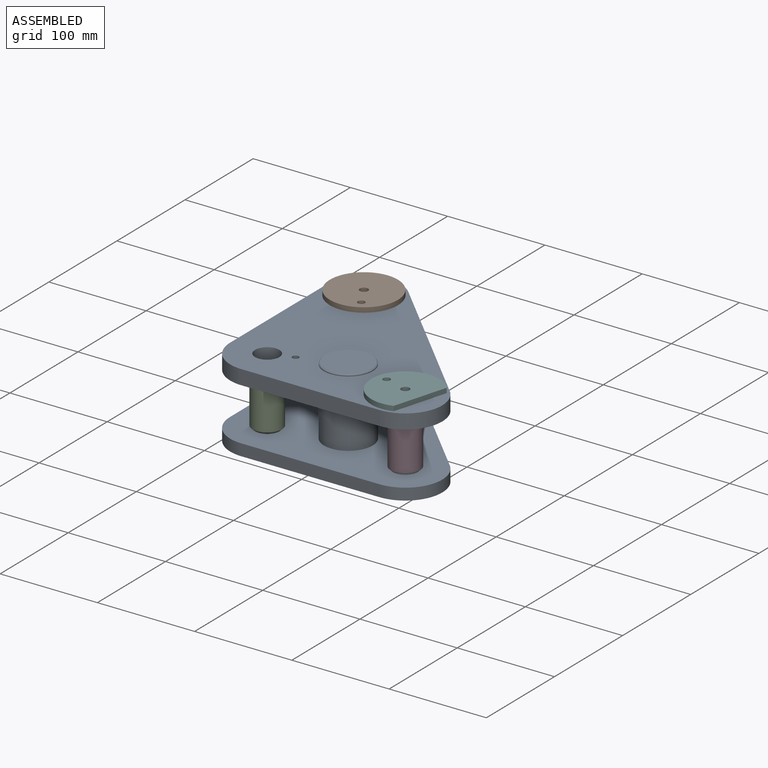
[diagram: assembled view]
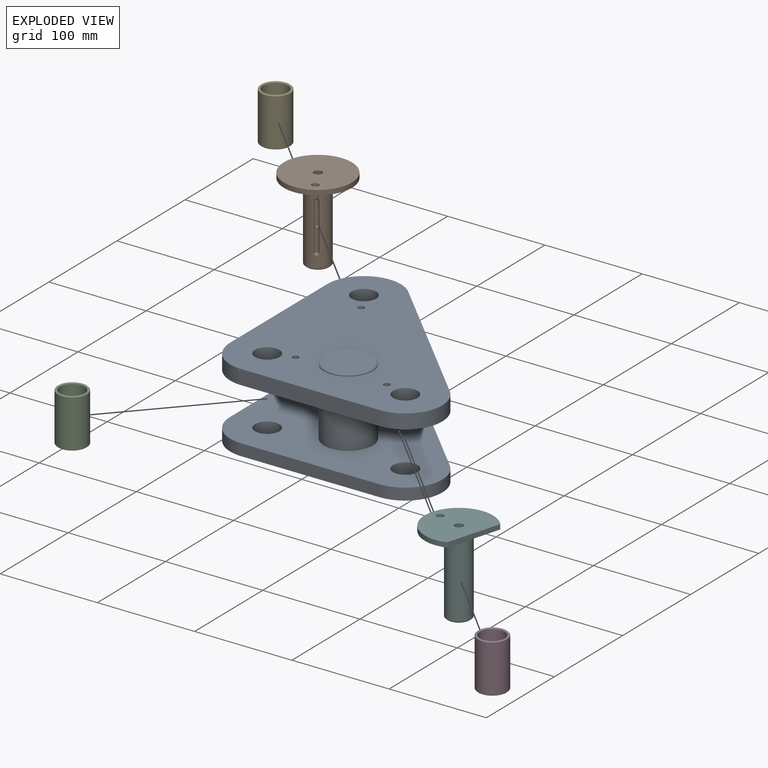
[diagram: exploded view]
GUIDED TOUR — FREECAD ASSEMBLY "hovairGuidage"

This assembly has 6 components, labeled P0..P5 below (a component is one placed body or linked part; the same part can appear more than once), held together by 0 modeled joints plus 7 derived contact edges. A joint is a constraint between two components; its type names the relative motion it leaves free:
  CONTACT — a derived adjacency edge — the two components touch in the source model (clearance under 2% of the assembly's diagonal); it is measured from the geometry, not a modeled constraint.
Axis/direction vectors are unit vectors and 'through' points are millimeter coordinates, both in the assembly's world frame.

MATES
  1. CONTACT "contact_0_1": P0 <-> P1, contact direction (-0.700, 0.714, 0.000) through (27.67, 172.96, 81.00) mm (derived from contact, not a modeled constraint)
  2. CONTACT "contact_0_2": P0 <-> P2, contact direction (-0.714, -0.700, -0.022) through (26.80, 44.10, 13.00) mm (derived from contact, not a modeled constraint)
  3. CONTACT "contact_0_3": P0 <-> P3, contact direction (0.700, -0.714, 0.000) through (188.90, 28.87, 65.00) mm (derived from contact, not a modeled constraint)
  4. CONTACT "contact_0_4": P0 <-> P4, contact direction (-0.700, 0.714, 0.000) through (28.65, 188.67, 65.00) mm (derived from contact, not a modeled constraint)
  5. CONTACT "contact_0_5": P0 <-> P5, contact direction (0.700, -0.714, 0.000) through (155.80, 48.45, 81.00) mm (derived from contact, not a modeled constraint)
  6. CONTACT "contact_1_4": P1 <-> P4, contact direction (-0.700, 0.714, 0.000) through (44.25, 169.17, 14.53) mm (derived from contact, not a modeled constraint)
  7. CONTACT "contact_3_5": P3 <-> P5, contact direction (-1.000, 0.000, 0.000) through (167.88, 41.07, 14.54) mm (derived from contact, not a modeled constraint)

ASSEMBLY ORDER
  1. P0 — the base component [order heuristic]
  2. P5 — core [order heuristic]
  3. P3 — core [order heuristic]
  4. P1 — core [order heuristic]
  5. P4 — core [order heuristic]
  6. P2 [order verified]
Order-tag legend:
  [order verified] — this step's position reverses a verified removal order: the component was checked to insert without passing through the ones already placed.
  [order heuristic] — the first 5 components form the assembly's core: parts whose collision-free extraction could not be verified, listed in mate-graph order.

Of the 6 components, 5 carry a construction recipe — the FreeCAD feature program (sketches with constraints, then the solid features that consume them) that regenerates the part from scratch, quoted from this document or from the linked companion document it references; the rest are supplied as boundary geometry only. The tour below walks the components in assembly order: each is shown spotlighted twice — in the assembled view, then in the exploded view, where a leader line traces a displaced component back to its assembled socket (components that stay in place when exploded have no leader line; saturated green if recipe-attached, orange if geometry-only; every other component desaturated gray) — followed by its recipe or geometry summary and the mates that hold it.
NOTE — this tour is split across 2 documents so each fits a 32k-token context. This is document 1: the component sections continue in the remaining 1 document, each repeating the header above.
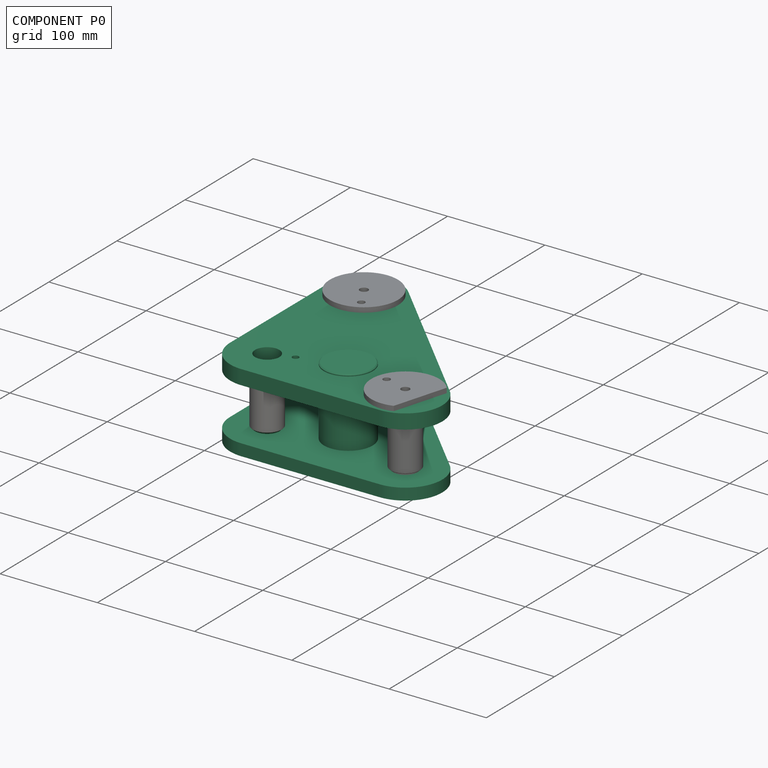
[diagram: component P0 — assembled]
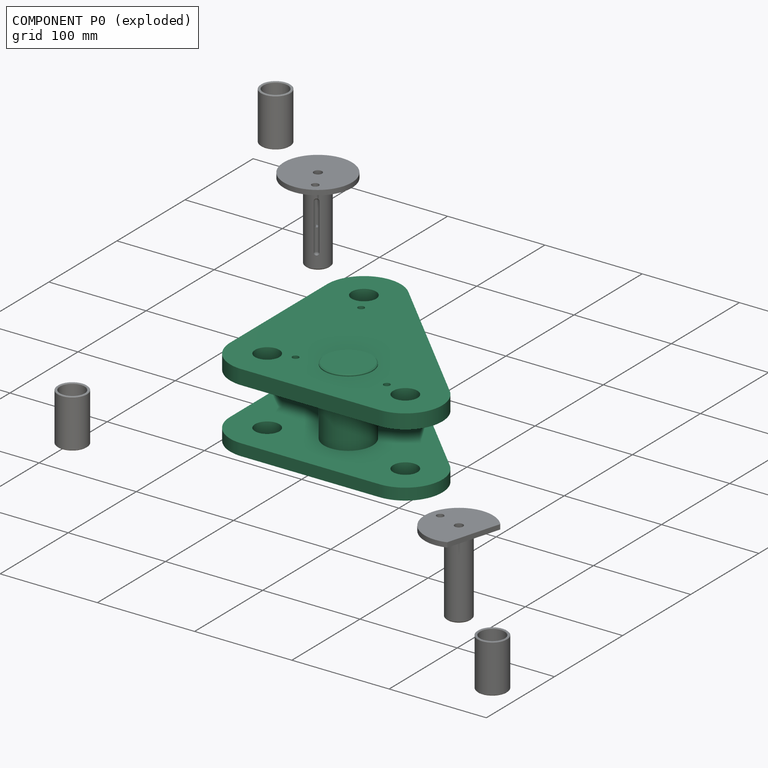
[diagram: component P0 — exploded]
COMPONENT P0 — recipe-attached ("triangle droit", a linked part whose construction recipe lives in a companion FreeCAD document of the same project; that document's serialized recipe follows).
Held by: resting contact with P1 (derived edge); resting contact with P2 (derived edge); resting contact with P3 (derived edge); resting contact with P4 (derived edge); resting contact with P5 (derived edge).
Construction recipe (the companion document, serialized — sketch geometry with constraints, then the solid features built on it; lengths are millimeters unless a unit is written):

FCSTD DOCUMENT  (FreeCAD 0.21R33668 +26 (Git))
Label: hovairGuidageTriangle
License: All rights reserved
LicenseURL: http://en.wikipedia.org/wiki/All_rights_reserved
objects: TechDraw::DrawViewDimension×35, TechDraw::DrawViewAnnotation×11, Sketcher::SketchObject×9, PartDesign::Pad×6, TechDraw::DrawProjGroupItem×5, TechDraw::DrawSVGTemplate×3, TechDraw::DrawProjGroup×3, TechDraw::DrawViewSection×3, TechDraw::DrawPage×3, PartDesign::Plane×2, PartDesign::Hole×2, PartDesign::Chamfer×2, PartDesign::Body×2, TechDraw::DrawViewBalloon×1
note: 91 computed .brp shape members not serialized (recipe doc carries the construction recipe); baked Part::Feature solids carry a one-line shape summary decoded from their .brp

FEATURE [Sketcher::SketchObject] Sketch006
  FullyConstrained = true
  MapMode = 5
  Support = -> [XY_Plane003]
  sketch-geometry (10):
    g0: ArcOfCircle CenterX=38 CenterY=38 CenterZ=0 NormalX=0 NormalY=0 NormalZ=1 AngleXU=0 Radius=38 StartAngle=3.14159 EndAngle=4.71239
    g1: ArcOfCircle CenterX=180 CenterY=38 CenterZ=0 NormalX=0 NormalY=0 NormalZ=1 AngleXU=0 Radius=38 StartAngle=4.71239 EndAngle=7.06858
    g2: LineSegment StartX=38 StartY=0 StartZ=0 EndX=180 EndY=0 EndZ=0
    g3: ArcOfCircle CenterX=38 CenterY=180 CenterZ=0 NormalX=0 NormalY=0 NormalZ=1 AngleXU=0 Radius=38 StartAngle=0.785398 EndAngle=3.14159
    g4: LineSegment StartX=64.8701 StartY=206.87 StartZ=0 EndX=206.87 EndY=64.8701 EndZ=0
    g5: LineSegment StartX=0 StartY=180 StartZ=0 EndX=0 EndY=38 EndZ=0
    g6: Circle CenterX=38 CenterY=180 CenterZ=0 NormalX=0 NormalY=0 NormalZ=1 AngleXU=0 Radius=12.5
    g7: Circle CenterX=180 CenterY=38 CenterZ=0 NormalX=0 NormalY=0 NormalZ=1 AngleXU=0 Radius=12.5
    g8: Circle CenterX=38 CenterY=38 CenterZ=0 NormalX=0 NormalY=0 NormalZ=1 AngleXU=0 Radius=12.5
    g9: Circle CenterX=106 CenterY=60 CenterZ=0 NormalX=0 NormalY=0 NormalZ=1 AngleXU=0 Radius=25
  constraints (26):
    c: Radius(g0) = 38
    c: Tangent(g0,g-2) = 1.5708
    c: Tangent(g0,g-1) = -1.5708
    c: Radius(g1) = 38
    c: Tangent(g1,g-1) = -1.5708
    c: Distance(g0,g1) = 142
    c: Coincident(g2,g1)
    c: Coincident(g2,g0)
    c: Radius(g3) = 38
    c: Tangent(g3,g-2) = 1.5708
    c: Tangent(g1,g4) = 1.5708
    c: Tangent(g3,g4) = 1.5708
    c: Coincident(g5,g0)
    c: Coincident(g5,g3)
    c: Coincident(g4,g3)
    c: Coincident(g4,g1)
    c: Distance(g0,g3) = 142
    c: Coincident(g3,g6)
    c: Diameter(g6) = 25
    c: Coincident(g7,g1)
    c: Diameter(g7) = 25
    c: Coincident(g8,g0)
    c: Diameter(g8) = 25
    c: Diameter(g9) = 50
    c: DistanceY(g0,g9) = 60
    c: DistanceX(g0,g9) = 106
FEATURE [PartDesign::Pad] Pad001  label="base de fixation des axes"
  Direction = (0,0,1)
  Length = 12
  Length2 = 10
  Profile = -> Sketch006
  ReferenceAxis = -> Sketch006 [N_Axis]
  Type = 0
FEATURE [Sketcher::SketchObject] Sketch
  ExternalGeometry = -> [Sketch006]
  FullyConstrained = true
  MapMode = 5
  Placement = pos=(0,0,0) rot=(1,0,0;3.14159rad)
  Support = -> [Pad001]
  sketch-geometry (1):
    g0: Circle CenterX=106 CenterY=-60 CenterZ=0 NormalX=0 NormalY=0 NormalZ=1 AngleXU=0 Radius=25
  constraints (2):
    c: Coincident(g0,g-3)
    c: Equal(g0,g-3)
FEATURE [PartDesign::Pad] Pad  label="Entretoise"
  BaseFeature = -> Pad001
  Direction = (0,0,-1)
  Length = 83
  Length2 = 10
  Profile = -> Sketch
  ReferenceAxis = -> Sketch [N_Axis]
  Reversed = true
  Type = 0
FEATURE [PartDesign::Plane] DatumPlane  label="planBase"
  AttachmentOffset = pos=(0,0,54) rot=(0,0,1;0rad)
  Length = 60
  MapMode = 5
  Placement = pos=(0,0,66) rot=(0,0,1;0rad)
  ResizeMode = 0
  Support = -> [Pad]
  Width = 60
FEATURE [Sketcher::SketchObject] Sketch007
  FullyConstrained = true
  MapMode = 5
  Placement = pos=(0,0,66) rot=(0,0,1;0rad)
  Support = -> [DatumPlane]
  expr: Constraints[0] = Sketch006.Constraints[0]
  expr: Constraints[16] = Sketch006.Constraints[16]
  expr: Constraints[18] = Sketch006.Constraints[18]
  expr: Constraints[20] = Sketch006.Constraints[20]
  expr: Constraints[22] = Sketch006.Constraints[22]
  expr: Constraints[23] = Sketch006.Constraints[23]
  expr: Constraints[24] = Sketch006.Constraints[24]
  expr: Constraints[25] = Sketch006.Constraints[25]
  expr: Constraints[3] = Sketch006.Constraints[3]
  expr: Constraints[5] = Sketch006.Constraints[5]
  expr: Constraints[8] = Sketch006.Constraints[8]
  sketch-geometry (10):
    g0: ArcOfCircle CenterX=38 CenterY=38 CenterZ=0 NormalX=0 NormalY=0 NormalZ=1 AngleXU=0 Radius=38 StartAngle=3.14159 EndAngle=4.71239
    g1: ArcOfCircle CenterX=180 CenterY=38 CenterZ=0 NormalX=0 NormalY=0 NormalZ=1 AngleXU=0 Radius=38 StartAngle=4.71239 EndAngle=7.06858
    g2: LineSegment StartX=38 StartY=0 StartZ=0 EndX=180 EndY=0 EndZ=0
    g3: ArcOfCircle CenterX=38 CenterY=180 CenterZ=0 NormalX=0 NormalY=0 NormalZ=1 AngleXU=0 Radius=38 StartAngle=0.785398 EndAngle=3.14159
    g4: LineSegment StartX=64.8701 StartY=206.87 StartZ=0 EndX=206.87 EndY=64.8701 EndZ=0
    g5: LineSegment StartX=0 StartY=180 StartZ=0 EndX=0 EndY=38 EndZ=0
    g6: Circle CenterX=38 CenterY=180 CenterZ=0 NormalX=0 NormalY=0 NormalZ=1 AngleXU=0 Radius=12.5
    g7: Circle CenterX=180 CenterY=38 CenterZ=0 NormalX=0 NormalY=0 NormalZ=1 AngleXU=0 Radius=12.5
    g8: Circle CenterX=38 CenterY=38 CenterZ=0 NormalX=0 NormalY=0 NormalZ=1 AngleXU=0 Radius=12.5
    g9: Circle CenterX=106 CenterY=60 CenterZ=0 NormalX=0 NormalY=0 NormalZ=1 AngleXU=0 Radius=25
  constraints (26):
    c: Radius(g0) = 38
    c: Tangent(g0,g-2) = 1.5708
    c: Tangent(g0,g-1) = -1.5708
    c: Radius(g1) = 38
    c: Tangent(g1,g-1) = -1.5708
    c: Distance(g0,g1) = 142
    c: Coincident(g2,g1)
    c: Coincident(g2,g0)
    c: Radius(g3) = 38
    c: Tangent(g3,g-2) = 1.5708
    c: Tangent(g1,g4) = 1.5708
    c: Tangent(g3,g4) = 1.5708
    c: Coincident(g5,g0)
    c: Coincident(g5,g3)
    c: Coincident(g4,g3)
    c: Coincident(g4,g1)
    c: Distance(g0,g3) = 142
    c: Coincident(g3,g6)
    c: Diameter(g6) = 25
    c: Coincident(g7,g1)
    c: Diameter(g7) = 25
    c: Coincident(g8,g0)
    c: Diameter(g8) = 25
    c: Diameter(g9) = 50
    c: DistanceY(g0,g9) = 60
    c: DistanceX(g0,g9) = 106
FEATURE [PartDesign::Pad] Pad002
  BaseFeature = -> Pad
  Direction = (0,0,1)
  Length = 15
  Length2 = 10
  Profile = -> Sketch007
  ReferenceAxis = -> Sketch007 [N_Axis]
  Type = 0
FEATURE [Sketcher::SketchObject] Sketch008
  ExternalGeometry = -> [Pad002]
  FullyConstrained = false
  MapMode = 5
  Placement = pos=(0,0,81) rot=(0,0,1;0rad)
  Support = -> [Pad002]
  sketch-geometry (9):
    g0: LineSegment StartX=-92.9805 StartY=411.142 StartZ=0 EndX=245.063 EndY=-185.406 EndZ=0
    g1: LineSegment StartX=243.321 StartY=104.427 StartZ=0 EndX=-106.422 EndY=-8.72462 EndZ=0
    g2: LineSegment StartX=-89.2896 StartY=118.059 StartZ=0 EndX=316.645 EndY=-2.62407 EndZ=0
    g3: GeomPoint X=50.3253 Y=158.249 Z=0
    g4: GeomPoint X=61.7861 Y=45.6955 Z=0
    g5: GeomPoint X=156.037 Y=45.1243 Z=0
    g6: Circle CenterX=50.3253 CenterY=158.249 CenterZ=0 NormalX=0 NormalY=0 NormalZ=1 AngleXU=0 Radius=2.5
    g7: Circle CenterX=156.037 CenterY=45.1243 CenterZ=0 NormalX=0 NormalY=0 NormalZ=1 AngleXU=0 Radius=2.5
    g8: Circle CenterX=61.7861 CenterY=45.6955 CenterZ=0 NormalX=0 NormalY=0 NormalZ=1 AngleXU=0 Radius=2.5
  constraints (18):
    c: PointOnObject(g-3,g0)
    c: PointOnObject(g-6,g0)
    c: PointOnObject(g-6,g1)
    c: PointOnObject(g-4,g1)
    c: PointOnObject(g-5,g2)
    c: PointOnObject(g-6,g2)
    c: PointOnObject(g5,g2)
    c: PointOnObject(g3,g0)
    c: PointOnObject(g4,g1)
    c: Distance(g4,g-4) = 25
    c: Distance(g5,g-5) = 25
    c: Distance(g3,g-3) = 25
    c: Coincident(g6,g3)
    c: Coincident(g7,g5)
    c: Coincident(g8,g4)
    c: Diameter(g8) = 5
    c: Equal(g8,g6)
    c: Equal(g8,g7)
FEATURE [PartDesign::Hole] Hole
  BaseFeature = -> Pad002
  CustomThreadClearance = 0
  Depth = 15
  DepthType = 0
  Diameter = 6.6
  DrillForDepth = false
  DrillPoint = 1
  DrillPointAngle = 118
  HoleCutCountersinkAngle = 90
  HoleCutCustomValues = false
  HoleCutDepth = 0
  HoleCutDiameter = 0
  HoleCutType = 0
  ModelThread = false
  Profile = -> Sketch008
  Tapered = false
  TaperedAngle = 90
  ThreadClass = 0
  ThreadDepth = 15
  ThreadDepthType = 0
  ThreadDirection = 0
  ThreadFit = 0
  ThreadSize = 14
  ThreadType = 1
  Threaded = false
  UseCustomThreadClearance = false
FEATURE [PartDesign::Chamfer] Chamfer
  Angle = 45
  Base = -> Hole [Edge70]
  BaseFeature = -> Hole
  ChamferType = 0
  FlipDirection = false
  Size = 1
  Size2 = 1
  SupportTransform = false
  UseAllEdges = false
FEATURE [Sketcher::SketchObject] Sketch010
  FullyConstrained = true
  MapMode = 5
  Support = -> [XY_Plane004]
  sketch-geometry (10):
    g0: ArcOfCircle CenterX=38 CenterY=38 CenterZ=0 NormalX=0 NormalY=0 NormalZ=1 AngleXU=0 Radius=38 StartAngle=3.14159 EndAngle=4.71239
    g1: ArcOfCircle CenterX=180 CenterY=38 CenterZ=0 NormalX=0 NormalY=0 NormalZ=1 AngleXU=0 Radius=38 StartAngle=4.71239 EndAngle=7.06858
    g2: LineSegment StartX=38 StartY=0 StartZ=0 EndX=180 EndY=0 EndZ=0
    g3: ArcOfCircle CenterX=38 CenterY=180 CenterZ=0 NormalX=0 NormalY=0 NormalZ=1 AngleXU=0 Radius=38 StartAngle=0.785398 EndAngle=3.14159
    g4: LineSegment StartX=64.8701 StartY=206.87 StartZ=0 EndX=206.87 EndY=64.8701 EndZ=0
    g5: LineSegment StartX=0 StartY=180 StartZ=0 EndX=0 EndY=38 EndZ=0
    g6: Circle CenterX=38 CenterY=180 CenterZ=0 NormalX=0 NormalY=0 NormalZ=1 AngleXU=0 Radius=12.5
    g7: Circle CenterX=180 CenterY=38 CenterZ=0 NormalX=0 NormalY=0 NormalZ=1 AngleXU=0 Radius=12.5
    g8: Circle CenterX=38 CenterY=38 CenterZ=0 NormalX=0 NormalY=0 NormalZ=1 AngleXU=0 Radius=12.5
    g9: Circle CenterX=60 CenterY=106 CenterZ=0 NormalX=0 NormalY=0 NormalZ=1 AngleXU=0 Radius=25
  constraints (26):
    c: Radius(g0) = 38
    c: Tangent(g0,g-2) = 1.5708
    c: Tangent(g0,g-1) = -1.5708
    c: Radius(g1) = 38
    c: Tangent(g1,g-1) = -1.5708
    c: Distance(g0,g1) = 142
    c: Coincident(g2,g1)
    c: Coincident(g2,g0)
    c: Radius(g3) = 38
    c: Tangent(g3,g-2) = 1.5708
    c: Tangent(g1,g4) = 1.5708
    c: Tangent(g3,g4) = 1.5708
    c: Coincident(g5,g0)
    c: Coincident(g5,g3)
    c: Coincident(g4,g3)
    c: Coincident(g4,g1)
    c: Distance(g0,g3) = 142
    c: Coincident(g3,g6)
    c: Diameter(g6) = 25
    c: Coincident(g7,g1)
    c: Diameter(g7) = 25
    c: Coincident(g8,g0)
    c: Diameter(g8) = 25
    c: Diameter(g9) = 50
    c: DistanceY(g0,g9) = 106
    c: DistanceX(g0,g9) = 60
FEATURE [PartDesign::Pad] Pad004  label="base de fixation des axes001"
  Direction = (0,0,1)
  Length = 15
  Length2 = 10
  Profile = -> Sketch010
  ReferenceAxis = -> Sketch010 [N_Axis]
  Type = 0
FEATURE [Sketcher::SketchObject] Sketch009
  ExternalGeometry = -> [Sketch010]
  FullyConstrained = true
  MapMode = 5
  Placement = pos=(0,0,0) rot=(1,0,0;3.14159rad)
  Support = -> [Pad004]
  sketch-geometry (1):
    g0: Circle CenterX=60 CenterY=-106 CenterZ=0 NormalX=0 NormalY=0 NormalZ=1 AngleXU=0 Radius=25
  constraints (2):
    c: Coincident(g0,g-3)
    c: Equal(g0,g-3)
FEATURE [PartDesign::Pad] Pad003  label="Entretoise001"
  BaseFeature = -> Pad004
  Direction = (0,0,-1)
  Length = 86
  Length2 = 10
  Profile = -> Sketch009
  ReferenceAxis = -> Sketch009 [N_Axis]
  Reversed = true
  Type = 0
FEATURE [PartDesign::Plane] DatumPlane001  label="planBase001"
  AttachmentOffset = pos=(0,0,54) rot=(0,0,1;0rad)
  Length = 60
  MapMode = 5
  Placement = pos=(0,0,69) rot=(0,0,1;0rad)
  ResizeMode = 0
  Support = -> [Pad003]
  Width = 60
FEATURE [Sketcher::SketchObject] Sketch011
  FullyConstrained = true
  MapMode = 5
  Placement = pos=(0,0,69) rot=(0,0,1;0rad)
  Support = -> [DatumPlane001]
  expr: Constraints[0] = Sketch010.Constraints[0]
  expr: Constraints[16] = Sketch010.Constraints[16]
  expr: Constraints[18] = Sketch010.Constraints[18]
  expr: Constraints[20] = Sketch010.Constraints[20]
  expr: Constraints[22] = Sketch010.Constraints[22]
  expr: Constraints[23] = Sketch010.Constraints[23]
  expr: Constraints[24] = Sketch010.Constraints[24]
  expr: Constraints[25] = Sketch010.Constraints[25]
  expr: Constraints[3] = Sketch010.Constraints[3]
  expr: Constraints[5] = Sketch010.Constraints[5]
  expr: Constraints[8] = Sketch010.Constraints[8]
  sketch-geometry (10):
    g0: ArcOfCircle CenterX=38 CenterY=38 CenterZ=0 NormalX=0 NormalY=0 NormalZ=1 AngleXU=0 Radius=38 StartAngle=3.14159 EndAngle=4.71239
    g1: ArcOfCircle CenterX=180 CenterY=38 CenterZ=0 NormalX=0 NormalY=0 NormalZ=1 AngleXU=0 Radius=38 StartAngle=4.71239 EndAngle=7.06858
    g2: LineSegment StartX=38 StartY=0 StartZ=0 EndX=180 EndY=0 EndZ=0
    g3: ArcOfCircle CenterX=38 CenterY=180 CenterZ=0 NormalX=0 NormalY=0 NormalZ=1 AngleXU=0 Radius=38 StartAngle=0.785398 EndAngle=3.14159
    g4: LineSegment StartX=64.8701 StartY=206.87 StartZ=0 EndX=206.87 EndY=64.8701 EndZ=0
    g5: LineSegment StartX=0 StartY=180 StartZ=0 EndX=0 EndY=38 EndZ=0
    g6: Circle CenterX=38 CenterY=180 CenterZ=0 NormalX=0 NormalY=0 NormalZ=1 AngleXU=0 Radius=12.5
    g7: Circle CenterX=180 CenterY=38 CenterZ=0 NormalX=0 NormalY=0 NormalZ=1 AngleXU=0 Radius=12.5
    g8: Circle CenterX=38 CenterY=38 CenterZ=0 NormalX=0 NormalY=0 NormalZ=1 AngleXU=0 Radius=12.5
    g9: Circle CenterX=60 CenterY=106 CenterZ=0 NormalX=0 NormalY=0 NormalZ=1 AngleXU=0 Radius=25
  constraints (26):
    c: Radius(g0) = 38
    c: Tangent(g0,g-2) = 1.5708
    c: Tangent(g0,g-1) = -1.5708
    c: Radius(g1) = 38
    c: Tangent(g1,g-1) = -1.5708
    c: Distance(g0,g1) = 142
    c: Coincident(g2,g1)
    c: Coincident(g2,g0)
    c: Radius(g3) = 38
    c: Tangent(g3,g-2) = 1.5708
    c: Tangent(g1,g4) = 1.5708
    c: Tangent(g3,g4) = 1.5708
    c: Coincident(g5,g0)
    c: Coincident(g5,g3)
    c: Coincident(g4,g3)
    c: Coincident(g4,g1)
    c: Distance(g0,g3) = 142
    c: Coincident(g3,g6)
    c: Diameter(g6) = 25
    c: Coincident(g7,g1)
    c: Diameter(g7) = 25
    c: Coincident(g8,g0)
    c: Diameter(g8) = 25
    c: Diameter(g9) = 50
    c: DistanceY(g0,g9) = 106
    c: DistanceX(g0,g9) = 60
FEATURE [PartDesign::Pad] Pad005
  BaseFeature = -> Pad003
  Direction = (0,0,1)
  Length = 15
  Length2 = 10
  Profile = -> Sketch011
  ReferenceAxis = -> Sketch011 [N_Axis]
  Type = 0
FEATURE [Sketcher::SketchObject] Sketch012
  ExternalGeometry = -> [Pad005]
  FullyConstrained = false
  MapMode = 5
  Placement = pos=(0,0,84) rot=(0,0,1;0rad)
  Support = -> [Pad005]
  sketch-geometry (9):
    g0: LineSegment StartX=-29.8325 StartY=408.164 StartZ=0 EndX=147.908 EndY=-189.691 EndZ=0
    g1: LineSegment StartX=139.234 StartY=350.905 StartZ=0 EndX=-31.2765 EndY=-176.127 EndZ=0
    g2: LineSegment StartX=-79.9504 StartY=185.305 StartZ=0 EndX=317.641 EndY=-39.9967 EndZ=0
    g3: GeomPoint X=45.1243 Y=156.037 Z=0
    g4: GeomPoint X=45.6955 Y=61.7861 Z=0
    g5: GeomPoint X=158.249 Y=50.3253 Z=0
    g6: Circle CenterX=45.1243 CenterY=156.037 CenterZ=0 NormalX=0 NormalY=0 NormalZ=1 AngleXU=0 Radius=2.5
    g7: Circle CenterX=158.249 CenterY=50.3253 CenterZ=0 NormalX=0 NormalY=0 NormalZ=1 AngleXU=0 Radius=2.5
    g8: Circle CenterX=45.6955 CenterY=61.7861 CenterZ=0 NormalX=0 NormalY=0 NormalZ=1 AngleXU=0 Radius=2.5
  constraints (18):
    c: PointOnObject(g-3,g0)
    c: PointOnObject(g-6,g0)
    c: PointOnObject(g-6,g1)
    c: PointOnObject(g-4,g1)
    c: PointOnObject(g-5,g2)
    c: PointOnObject(g-6,g2)
    c: PointOnObject(g5,g2)
    c: PointOnObject(g3,g0)
    c: PointOnObject(g4,g1)
    c: Distance(g4,g-4) = 25
    c: Distance(g5,g-5) = 25
    c: Distance(g3,g-3) = 25
    c: Coincident(g6,g3)
    c: Coincident(g7,g5)
    c: Coincident(g8,g4)
    c: Diameter(g8) = 5
    c: Equal(g8,g6)
    c: Equal(g8,g7)
FEATURE [PartDesign::Hole] Hole001
  BaseFeature = -> Pad005
  CustomThreadClearance = 0
  Depth = 15
  DepthType = 0
  Diameter = 6.6
  DrillForDepth = false
  DrillPoint = 1
  DrillPointAngle = 118
  HoleCutCountersinkAngle = 90
  HoleCutCustomValues = false
  HoleCutDepth = 0
  HoleCutDiameter = 6.1
  HoleCutType = 0
  ModelThread = false
  Profile = -> Sketch012
  Tapered = false
  TaperedAngle = 90
  ThreadClass = 0
  ThreadDepth = 15
  ThreadDepthType = 0
  ThreadDirection = 0
  ThreadFit = 0
  ThreadSize = 14
  ThreadType = 1
  Threaded = false
  UseCustomThreadClearance = false
FEATURE [PartDesign::Chamfer] Chamfer001
  Angle = 45
  Base = -> Hole001 [Edge70]
  BaseFeature = -> Hole001
  ChamferType = 0
  FlipDirection = false
  Size = 1
  Size2 = 1
  SupportTransform = false
  UseAllEdges = false
FEATURE [PartDesign::Body] Body003  label="triangleGauche"
  Group = -> [Sketch010,Pad004,Sketch009,Pad003,DatumPlane001,Sketch011,Pad005,Sketch012,Hole001,Chamfer001]
  Origin = -> Origin004
  Tip = -> Chamfer001
FEATURE [TechDraw::DrawSVGTemplate] Template
  EditableTexts = Designed_by_Name=Designed by Name; Drawing_number=Drawing number; FC-Date=Date; FC-SC=Scale; FC-SH=Sheet; FC-Title=Title; Subtitle=Subtitle; Weight=Weight
  Height = 210
  Orientation = 1
  Width = 297
  expr: Label = Template
FEATURE [TechDraw::DrawProjGroupItem] ProjItem  label="Front"
  CoarseView = false
  Direction = (0,0,1)
  Focus = 100
  HardHidden = false
  IsoCount = 0
  IsoHidden = false
  IsoVisible = true
  LockPosition = true
  Perspective = false
  Rotation = 0
  RotationVector = (-1,0,0)
  Scale = 0.5
  ScaleType = 2
  ScrubCount = 0
  SeamHidden = false
  SeamVisible = true
  SmoothHidden = false
  SmoothVisible = true
  Source = -> [Chamfer]
  Type = 0
  X = 0
  XDirection = (2e-16,-1,0)
  Y = 0
FEATURE [TechDraw::DrawProjGroupItem] ProjItem001  label="Left"
  CoarseView = false
  Direction = (-2e-16,1,1e-16)
  Focus = 100
  HardHidden = false
  IsoCount = 0
  IsoHidden = false
  IsoVisible = true
  LockPosition = false
  Perspective = false
  Rotation = 0
  RotationVector = (1,0,0)
  ScaleType = 2
  ScrubCount = 0
  SeamHidden = false
  SeamVisible = true
  SmoothHidden = false
  SmoothVisible = true
  Source = -> [Chamfer]
  Type = 1
  X = 90.25
  XDirection = (0,-1e-16,1)
  Y = 0
FEATURE [TechDraw::DrawProjGroup] ProjGroup
  Anchor = -> ProjItem
  AutoDistribute = true
  LockPosition = false
  ProjectionType = 0
  Rotation = 0
  Scale = 0.5
  ScaleType = 0
  Source = -> [Chamfer]
  Views = -> [ProjItem,ProjItem001]
  X = 94.985
  Y = 133.767
  spacingX = 15
  spacingY = 15
FEATURE [TechDraw::DrawViewDimension] Dimension
  AngleOverride = false
  Arbitrary = false
  ArbitraryTolerances = false
  EqualTolerance = true
  ExtensionAngle = 0
  FormatSpec = %.2w
  FormatSpecOverTolerance = %+.2w
  FormatSpecUnderTolerance = %+.2w
  Inverted = false
  LineAngle = 0
  LockPosition = false
  MeasureType = 1
  OverTolerance = 0
  References2D = -> [ProjItem001]
  Rotation = 0
  Scale = 0.5
  ScaleType = 0
  TheoreticalExact = false
  Type = 1
  UnderTolerance = 0
  X = -2.20172
  Y = -62.1546
FEATURE [TechDraw::DrawViewDimension] Dimension003
  AngleOverride = false
  Arbitrary = false
  ArbitraryTolerances = false
  EqualTolerance = true
  ExtensionAngle = 0
  FormatSpec = %.2w
  FormatSpecOverTolerance = %+.2w
  FormatSpecUnderTolerance = %+.2w
  Inverted = false
  LineAngle = 0
  LockPosition = false
  MeasureType = 1
  OverTolerance = 0
  References2D = -> [ProjItem001]
  Rotation = 0
  Scale = 0.5
  ScaleType = 0
  TheoreticalExact = false
  Type = 1
  UnderTolerance = 0
  X = 51.2517
  Y = 24.673
FEATURE [Sketcher::SketchObject] Sketch013
  ExternalGeometry = -> [Chamfer]
  FullyConstrained = false
  MapMode = 5
  Placement = pos=(0,0,81) rot=(0,0,1;0rad)
  Support = -> [Chamfer]
  sketch-geometry (5):
    g0: LineSegment StartX=0 StartY=158.249 StartZ=0 EndX=50.3253 EndY=158.249 EndZ=0
    g1: LineSegment StartX=50.3253 StartY=158.249 StartZ=0 EndX=50.3253 EndY=45.6955 EndZ=0
    g2: LineSegment StartX=50.3253 StartY=45.6955 StartZ=0 EndX=144.123 EndY=45.6955 EndZ=0
    g3: LineSegment StartX=144.123 StartY=45.1243 StartZ=0 EndX=236.221 EndY=45.1243 EndZ=0
    g4: LineSegment StartX=144.123 StartY=45.6955 StartZ=0 EndX=144.123 EndY=45.1243 EndZ=0
  constraints (13):
    c: Coincident(g0,g-3)
    c: Horizontal(g0)
    c: PointOnObject(g0,g-2)
    c: Coincident(g1,g0)
    c: Vertical(g1)
    c: Coincident(g2,g1)
    c: PointOnObject(g-4,g2)
    c: Horizontal(g2)
    c: Horizontal(g3)
    c: PointOnObject(g-5,g3)
    c: Coincident(g4,g3)
    c: Coincident(g2,g4)
    c: Vertical(g4)
FEATURE [PartDesign::Body] Body002  label="triangle droit"
  Group = -> [Sketch006,Pad001,Sketch,Pad,DatumPlane,Sketch007,Pad002,Sketch008,Hole,Chamfer,Sketch013]
  Origin = -> Origin003
  Tip = -> Chamfer
FEATURE [TechDraw::DrawViewDimension] Dimension004
  AngleOverride = false
  Arbitrary = false
  ArbitraryTolerances = false
  EqualTolerance = true
  ExtensionAngle = 0
  FormatSpec = R%.2w
  FormatSpecOverTolerance = %+.2w
  FormatSpecUnderTolerance = %+.2w
  Inverted = false
  LineAngle = 0
  LockPosition = false
  MeasureType = 1
  OverTolerance = 0
  References2D = -> [ProjItem]
  Rotation = 0
  Scale = 0.5
  ScaleType = 0
  TheoreticalExact = false
  Type = 4
  UnderTolerance = 0
  X = 54.0861
  Y = 56.9792
FEATURE [TechDraw::DrawViewDimension] Dimension005
  AngleOverride = false
  Arbitrary = true
  ArbitraryTolerances = false
  EqualTolerance = true
  ExtensionAngle = 0
  FormatSpec = M6
  FormatSpecOverTolerance = %+.2w
  FormatSpecUnderTolerance = %+.2w
  Inverted = false
  LineAngle = 0
  LockPosition = false
  MeasureType = 1
  OverTolerance = 0
  References2D = -> [ProjItem]
  Rotation = 0
  Scale = 0.5
  ScaleType = 0
  TheoreticalExact = false
  Type = 5
  UnderTolerance = 0
  X = 13.1733
  Y = 30.3827
FEATURE [TechDraw::DrawViewDimension] Dimension006
  AngleOverride = false
  Arbitrary = false
  ArbitraryTolerances = false
  EqualTolerance = true
  ExtensionAngle = 0
  FormatSpec = ⌀%.2w
  FormatSpecOverTolerance = %+.2w
  FormatSpecUnderTolerance = %+.2w
  Inverted = false
  LineAngle = 0
  LockPosition = false
  MeasureType = 1
  OverTolerance = 0
  References2D = -> [ProjItem]
  Rotation = 0
  Scale = 0.5
  ScaleType = 0
  TheoreticalExact = false
  Type = 5
  UnderTolerance = 0
  X = 18.3828
  Y = 42.1273
FEATURE [TechDraw::DrawViewDimension] Dimension007
  AngleOverride = false
  Arbitrary = true
  ArbitraryTolerances = false
  EqualTolerance = true
  ExtensionAngle = 0
  FormatSpec = 200
  Inverted = false
  LineAngle = 0
  LockPosition = false
  MeasureType = 1
  OverTolerance = 0
  References2D = -> [ProjItem]
  Rotation = 0
  Scale = 0.5
  ScaleType = 0
  TheoreticalExact = false
  Type = 0
  UnderTolerance = 0
  X = -18.8935
  Y = 32.6274
FEATURE [TechDraw::DrawViewDimension] Dimension008
  AngleOverride = false
  Arbitrary = false
  ArbitraryTolerances = false
  EqualTolerance = true
  ExtensionAngle = 0
  FormatSpec = %.2w
  FormatSpecOverTolerance = %+.2w
  FormatSpecUnderTolerance = %+.2w
  Inverted = false
  LineAngle = 0
  LockPosition = false
  MeasureType = 1
  OverTolerance = 0
  References2D = -> [ProjItem]
  Rotation = 0
  Scale = 0.5
  ScaleType = 0
  TheoreticalExact = false
  Type = 2
  UnderTolerance = 0
  X = 66.2444
  Y = -39.7903
FEATURE [TechDraw::DrawViewDimension] Dimension009
  AngleOverride = false
  Arbitrary = false
  ArbitraryTolerances = false
  EqualTolerance = true
  ExtensionAngle = 0
  FormatSpec = %.2w
  FormatSpecOverTolerance = %+.2w
  FormatSpecUnderTolerance = %+.2w
  Inverted = false
  LineAngle = 0
  LockPosition = false
  MeasureType = 1
  OverTolerance = 0
  References2D = -> [ProjItem]
  Rotation = 0
  Scale = 0.5
  ScaleType = 0
  TheoreticalExact = false
  Type = 2
  UnderTolerance = 0
  X = 66.4544
  Y = -1.17084
FEATURE [TechDraw::DrawViewDimension] Dimension010
  AngleOverride = false
  Arbitrary = false
  ArbitraryTolerances = false
  EqualTolerance = true
  ExtensionAngle = 0
  FormatSpec = %.2w
  FormatSpecOverTolerance = %+.2w
  FormatSpecUnderTolerance = %+.2w
  Inverted = false
  LineAngle = 0
  LockPosition = false
  MeasureType = 1
  OverTolerance = 0
  References2D = -> [ProjItem]
  Rotation = 0
  Scale = 0.5
  ScaleType = 0
  TheoreticalExact = false
  Type = 1
  UnderTolerance = 0
  X = 45.6795
  Y = -66.2972
FEATURE [TechDraw::DrawViewDimension] Dimension011
  AngleOverride = false
  Arbitrary = false
  ArbitraryTolerances = false
  EqualTolerance = true
  ExtensionAngle = 0
  FormatSpec = %.2w
  FormatSpecOverTolerance = %+.2w
  FormatSpecUnderTolerance = %+.2w
  Inverted = false
  LineAngle = 0
  LockPosition = false
  MeasureType = 1
  OverTolerance = 0
  References2D = -> [ProjItem]
  Rotation = 0
  Scale = 0.5
  ScaleType = 0
  TheoreticalExact = false
  Type = 1
  UnderTolerance = 0
  X = 4.75673
  Y = -64.2585
FEATURE [TechDraw::DrawViewDimension] Dimension012
  AngleOverride = false
  Arbitrary = false
  ArbitraryTolerances = false
  EqualTolerance = true
  ExtensionAngle = 0
  FormatSpec = %.2w
  FormatSpecOverTolerance = %+.2w
  FormatSpecUnderTolerance = %+.2w
  Inverted = false
  LineAngle = 0
  LockPosition = false
  MeasureType = 1
  OverTolerance = 0
  References2D = -> [ProjItem]
  Rotation = 0
  Scale = 0.5
  ScaleType = 0
  TheoreticalExact = false
  Type = 1
  UnderTolerance = 0
  X = 39.9798
  Y = 21.4191
FEATURE [TechDraw::DrawViewDimension] Dimension013
  AngleOverride = false
  Arbitrary = false
  ArbitraryTolerances = false
  EqualTolerance = true
  ExtensionAngle = 0
  FormatSpec = ⌀%.2w
  FormatSpecOverTolerance = %+.2w
  FormatSpecUnderTolerance = %+.2w
  Inverted = false
  LineAngle = 0
  LockPosition = false
  MeasureType = 1
  OverTolerance = 0
  References2D = -> [ProjItem]
  Rotation = 0
  Scale = 0.5
  ScaleType = 0
  TheoreticalExact = false
  Type = 5
  UnderTolerance = 0
  X = -8.25965
  Y = 5.44612
FEATURE [TechDraw::DrawViewDimension] Dimension014
  AngleOverride = false
  Arbitrary = false
  ArbitraryTolerances = false
  EqualTolerance = true
  ExtensionAngle = 0
  FormatSpec = %.2w
  FormatSpecOverTolerance = %+.2w
  FormatSpecUnderTolerance = %+.2w
  Inverted = false
  LineAngle = 0
  LockPosition = false
  MeasureType = 1
  OverTolerance = 0
  References2D = -> [ProjItem]
  Rotation = 0
  Scale = 0.5
  ScaleType = 0
  TheoreticalExact = false
  Type = 2
  UnderTolerance = 0
  X = -4.86799
  Y = -24.4104
FEATURE [TechDraw::DrawViewDimension] Dimension015
  AngleOverride = false
  Arbitrary = false
  ArbitraryTolerances = false
  EqualTolerance = true
  ExtensionAngle = 0
  FormatSpec = %.2w
  FormatSpecOverTolerance = %+.2w
  FormatSpecUnderTolerance = %+.2w
  Inverted = false
  LineAngle = 0
  LockPosition = false
  MeasureType = 1
  OverTolerance = 0
  References2D = -> [ProjItem001]
  Rotation = 0
  Scale = 0.5
  ScaleType = 0
  TheoreticalExact = false
  Type = 1
  UnderTolerance = 0
  X = -1.58253
  Y = -51.3349
FEATURE [TechDraw::DrawViewDimension] Dimension016
  AngleOverride = false
  Arbitrary = false
  ArbitraryTolerances = false
  EqualTolerance = true
  ExtensionAngle = 0
  FormatSpec = %.2w
  FormatSpecOverTolerance = %+.2w
  FormatSpecUnderTolerance = %+.2w
  Inverted = false
  LineAngle = 0
  LockPosition = false
  MeasureType = 1
  OverTolerance = 0
  References2D = -> [ProjItem001]
  Rotation = 0
  Scale = 0.5
  ScaleType = 0
  TheoreticalExact = false
  Type = 1
  UnderTolerance = 0
  X = 28.9686
  Y = 65.6457
FEATURE [TechDraw::DrawViewDimension] Dimension017
  AngleOverride = false
  Arbitrary = false
  ArbitraryTolerances = false
  EqualTolerance = true
  ExtensionAngle = 0
  FormatSpec = %.2w
  FormatSpecOverTolerance = %+.2w
  FormatSpecUnderTolerance = %+.2w
  Inverted = false
  LineAngle = 0
  LockPosition = false
  MeasureType = 1
  OverTolerance = 0
  References2D = -> [ProjItem001]
  Rotation = 0
  Scale = 0.5
  ScaleType = 0
  TheoreticalExact = false
  Type = 1
  UnderTolerance = 0
  X = -31.0511
  Y = 64.9807
FEATURE [TechDraw::DrawViewDimension] Dimension018
  AngleOverride = false
  Arbitrary = false
  ArbitraryTolerances = false
  EqualTolerance = true
  ExtensionAngle = 0
  FormatSpec = %.2w x45°
  FormatSpecOverTolerance = %+.2w
  FormatSpecUnderTolerance = %+.2w
  Inverted = false
  LineAngle = 0
  LockPosition = false
  MeasureType = 1
  OverTolerance = 0
  References2D = -> [ProjItem001]
  Rotation = 0
  Scale = 0.5
  ScaleType = 0
  TheoreticalExact = false
  Type = 2
  UnderTolerance = 0
  X = 30.7283
  Y = -23.2941
FEATURE [TechDraw::DrawViewSection] SectionView  label="Section  - "
  BaseView = -> ProjItem
  CoarseView = false
  CutSurfaceDisplay = 2
  Direction = (1,1e-16,0)
  FileGeomPattern = C:/Program Files/FreeCAD 0.21/data/Mod/TechDraw/PAT/FCPAT.pat
  FileHatchPattern = C:/Program Files/FreeCAD 0.21/data/Mod/TechDraw/Patterns/simple.svg
  Focus = 100
  FuseBeforeCut = false
  HardHidden = false
  HatchOffset = (0,0,0)
  HatchRotation = 0
  HatchScale = 1
  IsoCount = 0
  IsoHidden = false
  IsoVisible = true
  LockPosition = false
  NameGeomPattern = Diamant
  Perspective = false
  Rotation = 0
  Scale = 0.5
  ScaleType = 2
  ScrubCount = 0
  SeamHidden = false
  SeamVisible = true
  SectionDirection = 4
  SectionNormal = (1,1e-16,0)
  SectionOrigin = (38,108,41.5)
  SmoothHidden = false
  SmoothVisible = true
  Source = -> [Chamfer]
  TrimAfterCut = false
  X = 79.928
  XDirection = (1e-16,-1,0)
  Y = 37.3303
FEATURE [TechDraw::DrawPage] Page
  KeepUpdated = true
  NextBalloonIndex = 1
  ProjectionType = 0
  Scale = 0.5
  Template = -> Template
  Views = -> [ProjGroup,Dimension,Dimension003,Dimension004,Dimension005,Dimension006,Dimension007,Dimension008,Dimension009,Dimension010,Dimension011,Dimension012,Dimension013,Dimension014,Dimension015,Dimension016,Dimension017,Dimension018,SectionView]
FEATURE [TechDraw::DrawSVGTemplate] Template001
  EditableTexts = A3=A3; A__=_________; B__=_________; C__=_________; D__=_________; E__=_________; Echelle=0,5; F__=_________; G__=_________; H__=_________; I__=_________; Societe=CAF; Sous_titre=DROIT; Titre=TRIANGLE HOVAIR
  Height = 297
  Orientation = 1
  Template = C:/Program Files/FreeCAD 0.21/data/Mod/TechDraw/Templates/A3_Landscape_FR_m52.svg
  Width = 420
FEATURE [TechDraw::DrawProjGroupItem] ProjItem002  label="Front001"
  CoarseView = false
  Direction = (0,0,1)
  Focus = 100
  HardHidden = false
  IsoCount = 0
  IsoHidden = false
  IsoVisible = true
  LockPosition = true
  Perspective = false
  Rotation = 0
  RotationVector = (1,0,0)
  Scale = 0.5
  ScaleType = 2
  ScrubCount = 0
  SeamHidden = false
  SeamVisible = true
  SmoothHidden = false
  SmoothVisible = true
  Source = -> [Body002]
  Type = 0
  X = 0
  XDirection = (1e-16,-1,0)
  Y = 0
FEATURE [TechDraw::DrawProjGroupItem] ProjItem003  label="Left001"
  CoarseView = false
  Direction = (-1e-16,1,1e-16)
  Focus = 100
  HardHidden = false
  IsoCount = 0
  IsoHidden = false
  IsoVisible = true
  LockPosition = true
  Perspective = false
  Rotation = 0
  RotationVector = (1,0,0)
  Scale = 0.5
  ScaleType = 2
  ScrubCount = 0
  SeamHidden = false
  SeamVisible = true
  SmoothHidden = false
  SmoothVisible = false
  Source = -> [Body002]
  Type = 1
  X = 159.01
  XDirection = (0,-1e-16,1)
  Y = 0
FEATURE [TechDraw::DrawProjGroup] ProjGroup001
  Anchor = -> ProjItem002
  AutoDistribute = true
  LockPosition = true
  ProjectionType = 0
  Rotation = 0
  Scale = 0.5
  ScaleType = 0
  Source = -> [Body002]
  Views = -> [ProjItem002,ProjItem003]
  X = 145.162
  Y = 186.721
  spacingX = 15
  spacingY = 15
FEATURE [TechDraw::DrawViewDimension] Dimension019
  AngleOverride = false
  Arbitrary = false
  ArbitraryTolerances = false
  EqualTolerance = true
  ExtensionAngle = 0
  FormatSpec = R%.2w
  FormatSpecOverTolerance = %+.2w
  FormatSpecUnderTolerance = %+.2w
  Inverted = false
  LineAngle = 0
  LockPosition = false
  MeasureType = 1
  OverTolerance = 0
  References2D = -> [ProjItem002]
  Rotation = 0
  Scale = 0.5
  ScaleType = 0
  TheoreticalExact = false
  Type = 4
  UnderTolerance = 0
  X = 54.9066
  Y = 61.5716
FEATURE [TechDraw::DrawViewDimension] Dimension020
  AngleOverride = false
  Arbitrary = false
  ArbitraryTolerances = false
  EqualTolerance = true
  ExtensionAngle = 0
  FormatSpec = %.2w
  FormatSpecOverTolerance = %+.2w
  FormatSpecUnderTolerance = %+.2w
  Inverted = false
  LineAngle = 0
  LockPosition = false
  MeasureType = 1
  OverTolerance = 0
  References2D = -> [ProjItem002]
  Rotation = 0
  Scale = 0.5
  ScaleType = 0
  TheoreticalExact = false
  Type = 2
  UnderTolerance = 0
  X = 71.9765
  Y = -41.5848
FEATURE [TechDraw::DrawViewDimension] Dimension021
  AngleOverride = false
  Arbitrary = false
  ArbitraryTolerances = false
  EqualTolerance = true
  ExtensionAngle = 0
  FormatSpec = %.2w
  FormatSpecOverTolerance = %+.2w
  FormatSpecUnderTolerance = %+.2w
  Inverted = false
  LineAngle = 0
  LockPosition = false
  MeasureType = 1
  OverTolerance = 0
  References2D = -> [ProjItem002]
  Rotation = 0
  Scale = 0.5
  ScaleType = 0
  TheoreticalExact = false
  Type = 2
  UnderTolerance = 0
  X = 72.0538
  Y = 2.10538
FEATURE [TechDraw::DrawViewDimension] Dimension022
  AngleOverride = false
  Arbitrary = false
  ArbitraryTolerances = false
  EqualTolerance = true
  ExtensionAngle = 0
  FormatSpec = ⌀%.2w
  FormatSpecOverTolerance = %+.2w
  FormatSpecUnderTolerance = %+.2w
  Inverted = false
  LineAngle = 0
  LockPosition = false
  MeasureType = 1
  OverTolerance = 0
  References2D = -> [ProjItem002]
  Rotation = 0
  Scale = 0.5
  ScaleType = 0
  TheoreticalExact = false
  Type = 5
  UnderTolerance = 0
  X = 18.893
  Y = 41.1341
FEATURE [TechDraw::DrawViewDimension] Dimension023
  AngleOverride = false
  Arbitrary = true
  ArbitraryTolerances = false
  EqualTolerance = true
  ExtensionAngle = 0
  FormatSpec = M6
  FormatSpecOverTolerance = %+.2w
  FormatSpecUnderTolerance = %+.2w
  Inverted = false
  LineAngle = 0
  LockPosition = false
  MeasureType = 1
  OverTolerance = 0
  References2D = -> [ProjItem002]
  Rotation = 0
  Scale = 0.5
  ScaleType = 0
  TheoreticalExact = false
  Type = 5
  UnderTolerance = 0
  X = 11.001
  Y = 29.1765
FEATURE [TechDraw::DrawViewDimension] Dimension024
  AngleOverride = false
  Arbitrary = false
  ArbitraryTolerances = false
  EqualTolerance = true
  ExtensionAngle = 0
  FormatSpec = %.2w
  FormatSpecOverTolerance = %+.2w
  FormatSpecUnderTolerance = %+.2w
  Inverted = false
  LineAngle = 0
  LockPosition = false
  MeasureType = 1
  OverTolerance = 0
  References2D = -> [ProjItem002]
  Rotation = 0
  Scale = 0.5
  ScaleType = 0
  TheoreticalExact = false
  Type = 1
  UnderTolerance = 0
  X = 45.6162
  Y = -63.3965
FEATURE [TechDraw::DrawViewDimension] Dimension025
  AngleOverride = false
  Arbitrary = false
  ArbitraryTolerances = false
  EqualTolerance = true
  ExtensionAngle = 0
  FormatSpec = %.2w
  FormatSpecOverTolerance = %+.2w
  FormatSpecUnderTolerance = %+.2w
  Inverted = false
  LineAngle = 0
  LockPosition = false
  MeasureType = 1
  OverTolerance = 0
  References2D = -> [ProjItem002]
  Rotation = 0
  Scale = 0.5
  ScaleType = 0
  TheoreticalExact = false
  Type = 1
  UnderTolerance = 0
  X = 5.08227
  Y = -63.2407
FEATURE [TechDraw::DrawViewDimension] Dimension026
  AngleOverride = false
  Arbitrary = false
  ArbitraryTolerances = false
  EqualTolerance = true
  ExtensionAngle = 0
  FormatSpec = %.2w
  FormatSpecOverTolerance = %+.2w
  FormatSpecUnderTolerance = %+.2w
  Inverted = false
  LineAngle = 0
  LockPosition = false
  MeasureType = 1
  OverTolerance = 0
  References2D = -> [ProjItem002]
  Rotation = 0
  Scale = 0.5
  ScaleType = 0
  TheoreticalExact = false
  Type = 1
  UnderTolerance = 0
  X = 39.166
  Y = 19.237
FEATURE [TechDraw::DrawViewDimension] Dimension027
  AngleOverride = false
  Arbitrary = false
  ArbitraryTolerances = false
  EqualTolerance = true
  ExtensionAngle = 0
  FormatSpec = ⌀%.2w
  FormatSpecOverTolerance = %+.2w
  FormatSpecUnderTolerance = %+.2w
  Inverted = false
  LineAngle = 0
  LockPosition = false
  MeasureType = 1
  OverTolerance = 0
  References2D = -> [ProjItem002]
  Rotation = 0
  Scale = 0.5
  ScaleType = 0
  TheoreticalExact = false
  Type = 5
  UnderTolerance = 0
  X = -8.21447
  Y = 4.0267
FEATURE [TechDraw::DrawViewDimension] Dimension028
  AngleOverride = false
  Arbitrary = false
  ArbitraryTolerances = false
  EqualTolerance = true
  ExtensionAngle = 0
  FormatSpec = %.2w
  FormatSpecOverTolerance = %+.2w
  FormatSpecUnderTolerance = %+.2w
  Inverted = false
  LineAngle = 0
  LockPosition = false
  MeasureType = 1
  OverTolerance = 0
  References2D = -> [ProjItem002]
  Rotation = 0
  Scale = 0.5
  ScaleType = 0
  TheoreticalExact = false
  Type = 2
  UnderTolerance = 0
  X = -0.479657
  Y = -24.8425
FEATURE [TechDraw::DrawViewSection] SectionView001  label="A - A"
  BaseView = -> ProjItem002
  CoarseView = false
  CutSurfaceDisplay = 2
  Direction = (1,0,0)
  FileGeomPattern = C:/Program Files/FreeCAD 0.21/data/Mod/TechDraw/PAT/FCPAT.pat
  FileHatchPattern = C:/Program Files/FreeCAD 0.21/data/Mod/TechDraw/Patterns/simple.svg
  Focus = 100
  FuseBeforeCut = false
  HardHidden = false
  HatchOffset = (0,0,0)
  HatchRotation = 0
  HatchScale = 1
  IsoCount = 0
  IsoHidden = false
  IsoVisible = true
  LockPosition = false
  NameGeomPattern = Diamant
  Perspective = false
  Rotation = 0
  Scale = 0.5
  ScaleType = 2
  ScrubCount = 0
  SeamHidden = false
  SeamVisible = true
  SectionDirection = 4
  SectionNormal = (1,0,0)
  SectionOrigin = (38,109,41.5)
  SmoothHidden = false
  SmoothVisible = true
  Source = -> [Body002]
  TrimAfterCut = false
  X = 146.365
  XDirection = (0,-1,0)
  Y = 48.7904
FEATURE [TechDraw::DrawViewSection] SectionView002  label="B-B"
  BaseView = -> ProjItem002
  CoarseView = false
  CutSurfaceDisplay = 2
  Direction = (1e-16,-1,0)
  FileGeomPattern = C:/Program Files/FreeCAD 0.21/data/Mod/TechDraw/PAT/FCPAT.pat
  FileHatchPattern = C:/Program Files/FreeCAD 0.21/data/Mod/TechDraw/Patterns/simple.svg
  Focus = 100
  FuseBeforeCut = false
  HardHidden = false
  HatchOffset = (0,0,0)
  HatchRotation = 0
  HatchScale = 1
  IsoCount = 0
  IsoHidden = false
  IsoVisible = true
  LockPosition = false
  NameGeomPattern = Diamant
  Perspective = false
  Rotation = 90
  Scale = 0.5
  ScaleType = 2
  ScrubCount = 0
  SeamHidden = false
  SeamVisible = true
  SectionDirection = 4
  SectionNormal = (1e-16,-1,0)
  SectionOrigin = (107,158,41.5)
  SmoothHidden = false
  SmoothVisible = true
  Source = -> [Body002]
  TrimAfterCut = false
  X = 46.1608
  XDirection = (1,1e-16,0)
  Y = 159.91
FEATURE [TechDraw::DrawViewAnnotation] Annotation
  Font = osifont
  LineSpace = 100
  LockPosition = false
  MaxWidth = -1
  Rotation = 0
  Scale = 0.5
  ScaleType = 0
  Text = A
  TextSize = 5
  TextStyle = 0
  X = 83.2039
  Y = 173.077
FEATURE [TechDraw::DrawViewAnnotation] Annotation001
  Font = osifont
  LineSpace = 100
  LockPosition = false
  MaxWidth = -1
  Rotation = 0
  Scale = 0.5
  ScaleType = 0
  Text = A
  TextSize = 5
  TextStyle = 0
  X = 208.088
  Y = 174.631
FEATURE [TechDraw::DrawViewDimension] Dimension029
  AngleOverride = false
  Arbitrary = true
  ArbitraryTolerances = false
  EqualTolerance = true
  ExtensionAngle = 0
  FormatSpec = 200
  FormatSpecOverTolerance = %+.2w
  FormatSpecUnderTolerance = %+.2w
  Inverted = false
  LineAngle = 0
  LockPosition = false
  MeasureType = 1
  OverTolerance = 0
  References2D = -> [ProjItem002]
  Rotation = 0
  Scale = 0.5
  ScaleType = 0
  TheoreticalExact = false
  Type = 0
  UnderTolerance = 0
  X = -31.4154
  Y = 29.5425
FEATURE [TechDraw::DrawViewDimension] Dimension030
  AngleOverride = false
  Arbitrary = false
  ArbitraryTolerances = false
  EqualTolerance = true
  ExtensionAngle = 0
  FormatSpec = %.2w
  FormatSpecOverTolerance = %+.2w
  FormatSpecUnderTolerance = %+.2w
  Inverted = false
  LineAngle = 0
  LockPosition = false
  MeasureType = 1
  OverTolerance = 0
  References2D = -> [ProjItem002]
  Rotation = 0
  Scale = 0.5
  ScaleType = 0
  TheoreticalExact = false
  Type = 0
  UnderTolerance = 0
  X = 46.1772
  Y = -21.4952
FEATURE [TechDraw::DrawViewDimension] Dimension031
  AngleOverride = false
  Arbitrary = false
  ArbitraryTolerances = false
  EqualTolerance = true
  ExtensionAngle = 0
  FormatSpec = %.2w
  FormatSpecOverTolerance = %+.2w
  FormatSpecUnderTolerance = %+.2w
  Inverted = false
  LineAngle = 0
  LockPosition = false
  MeasureType = 1
  OverTolerance = 0
  References2D = -> [ProjItem003]
  Rotation = 0
  Scale = 0.5
  ScaleType = 0
  TheoreticalExact = false
  Type = 1
  UnderTolerance = 0
  X = -0.796508
  Y = -67.4652
FEATURE [TechDraw::DrawViewDimension] Dimension032
  AngleOverride = false
  Arbitrary = false
  ArbitraryTolerances = false
  EqualTolerance = true
  ExtensionAngle = 0
  FormatSpec = %.2w
  FormatSpecOverTolerance = %+.2w
  FormatSpecUnderTolerance = %+.2w
  Inverted = false
  LineAngle = 0
  LockPosition = false
  MeasureType = 1
  OverTolerance = 0
  References2D = -> [ProjItem003]
  Rotation = 0
  Scale = 0.5
  ScaleType = 0
  TheoreticalExact = false
  Type = 1
  UnderTolerance = 0
  X = -1.40698
  Y = -81.07
FEATURE [TechDraw::DrawViewDimension] Dimension033
  AngleOverride = false
  Arbitrary = false
  ArbitraryTolerances = false
  EqualTolerance = true
  ExtensionAngle = 0
  FormatSpec = %.2w
  FormatSpecOverTolerance = %+.2w
  FormatSpecUnderTolerance = %+.2w
  Inverted = false
  LineAngle = 0
  LockPosition = false
  MeasureType = 1
  OverTolerance = 0
  References2D = -> [ProjItem003]
  Rotation = 0
  Scale = 0.5
  ScaleType = 0
  TheoreticalExact = false
  Type = 1
  UnderTolerance = 0
  X = -5.05223
  Y = 66.0233
FEATURE [TechDraw::DrawViewDimension] Dimension034
  AngleOverride = false
  Arbitrary = false
  ArbitraryTolerances = false
  EqualTolerance = true
  ExtensionAngle = 0
  FormatSpec = %.2w
  FormatSpecOverTolerance = %+.2w
  FormatSpecUnderTolerance = %+.2w
  Inverted = false
  LineAngle = 0
  LockPosition = false
  MeasureType = 1
  OverTolerance = 0
  References2D = -> [ProjItem003]
  Rotation = 0
  Scale = 0.5
  ScaleType = 0
  TheoreticalExact = false
  Type = 1
  UnderTolerance = 0
  X = 31.8722
  Y = 65.5698
FEATURE [TechDraw::DrawViewAnnotation] Annotation002
  Font = osifont
  LineSpace = 100
  LockPosition = false
  MaxWidth = -1
  Rotation = 0
  Scale = 0.5
  ScaleType = 0
  Text = B
  TextSize = 5
  TextStyle = 0
  X = 136.903
  Y = 254.449
FEATURE [TechDraw::DrawViewAnnotation] Annotation003
  Font = osifont
  LineSpace = 100
  LockPosition = false
  MaxWidth = -1
  Rotation = 0
  Scale = 0.5
  ScaleType = 0
  Text = B
  TextSize = 5
  TextStyle = 0
  X = 135.809
  Y = 129.906
FEATURE [TechDraw::DrawViewAnnotation] Annotation004
  Font = osifont
  LineSpace = 100
  LockPosition = false
  MaxWidth = -1
  Rotation = 0
  Scale = 0.5
  ScaleType = 0
  Text = VUE DE GAUCHE
  TextSize = 5
  TextStyle = 0
  X = 303.694
  Y = 276.661
FEATURE [TechDraw::DrawViewAnnotation] Annotation005
  Font = osifont
  LineSpace = 100
  LockPosition = false
  MaxWidth = -1
  Rotation = 0
  Scale = 0.5
  ScaleType = 0
  Text = VUE DE FACE
  TextSize = 5
  TextStyle = 0
  X = 150.774
  Y = 277.147
FEATURE [TechDraw::DrawViewAnnotation] Annotation006
  Font = osifont
  LineSpace = 100
  LockPosition = false
  MaxWidth = -1
  Rotation = 0
  Scale = 0.5
  ScaleType = 0
  Text = B - B
  TextSize = 5
  TextStyle = 0
  X = 44.1231
  Y = 203.143
FEATURE [TechDraw::DrawViewAnnotation] Annotation007
  Font = osifont
  LineSpace = 100
  LockPosition = false
  MaxWidth = -1
  Rotation = 0
  Scale = 0.5
  ScaleType = 0
  Text = A - A
  TextSize = 5
  TextStyle = 0
  X = 142.457
  Y = 83.3906
FEATURE [TechDraw::DrawSVGTemplate] Template002
  Height = 297
  Orientation = 1
  Template = C:/Program Files/FreeCAD 0.21/data/Mod/TechDraw/Templates/A3_Landscape_FR_m52.svg
  Width = 420
FEATURE [TechDraw::DrawProjGroupItem] ProjItem004  label="Front002"
  CoarseView = false
  Direction = (0,0,1)
  Focus = 100
  HardHidden = false
  IsoCount = 0
  IsoHidden = false
  IsoVisible = true
  LockPosition = true
  Perspective = false
  Rotation = 0
  RotationVector = (1,0,0)
  ScaleType = 2
  ScrubCount = 0
  SeamHidden = false
  SeamVisible = true
  SmoothHidden = false
  SmoothVisible = true
  Source = -> [Body003]
  Type = 0
  X = 0
  XDirection = (1e-16,-1,0)
  Y = 0
FEATURE [TechDraw::DrawProjGroup] ProjGroup002
  Anchor = -> ProjItem004
  AutoDistribute = true
  LockPosition = false
  ProjectionType = 0
  Rotation = 0
  Scale = 0.5
  ScaleType = 0
  Source = -> [Body003]
  Views = -> [ProjItem004]
  X = 130.8
  Y = 175.257
  spacingX = 15
  spacingY = 15
FEATURE [TechDraw::DrawViewDimension] Dimension035
  AngleOverride = false
  Arbitrary = false
  ArbitraryTolerances = false
  EqualTolerance = true
  ExtensionAngle = 0
  FormatSpec = %.2w
  FormatSpecOverTolerance = %+.2w
  FormatSpecUnderTolerance = %+.2w
  Inverted = false
  LineAngle = 0
  LockPosition = false
  MeasureType = 1
  OverTolerance = 0
  References2D = -> [ProjItem004]
  Rotation = 0
  Scale = 0.5
  ScaleType = 0
  TheoreticalExact = false
  Type = 2
  UnderTolerance = 0
  X = 71.9206
  Y = -38.7904
FEATURE [TechDraw::DrawViewDimension] Dimension036
  AngleOverride = false
  Arbitrary = false
  ArbitraryTolerances = false
  EqualTolerance = true
  ExtensionAngle = 0
  FormatSpec = %.2w
  FormatSpecOverTolerance = %+.2w
  FormatSpecUnderTolerance = %+.2w
  Inverted = false
  LineAngle = 0
  LockPosition = false
  MeasureType = 1
  OverTolerance = 0
  References2D = -> [ProjItem004]
  Rotation = 0
  Scale = 0.5
  ScaleType = 0
  TheoreticalExact = false
  Type = 1
  UnderTolerance = 0
  X = 28.2581
  Y = -68.6308
FEATURE [TechDraw::DrawViewAnnotation] Annotation008
  Font = osifont
  LineSpace = 100
  LockPosition = false
  MaxWidth = -1
  Rotation = 0
  Scale = 0.5
  ScaleType = 0
  Text = Pour le triangle gauche, il faut reprendre  | les dimensions du triangle droit. | Seul le placement de l'entretoise et | des trous taraudés ont changés.
  TextSize = 5
  TextStyle = 0
  X = 288.712
  Y = 193.017
FEATURE [TechDraw::DrawPage] Page002
  KeepUpdated = true
  NextBalloonIndex = 1
  ProjectionType = 0
  Scale = 0.5
  Template = -> Template002
  Views = -> [ProjGroup002,Dimension035,Dimension036,Annotation008]
FEATURE [TechDraw::DrawViewAnnotation] Annotation009
  Font = osifont
  LineSpace = 100
  LockPosition = false
  MaxWidth = -1
  Rotation = 0
  Scale = 0.5
  ScaleType = 0
  Text = Mat : ACIER | Peinture : JAUNE
  TextSize = 5
  TextStyle = 0
  X = 373.284
  Y = 201.952
FEATURE [TechDraw::DrawViewAnnotation] Annotation010
  Font = osifont
  LineSpace = 100
  LockPosition = false
  MaxWidth = -1
  Rotation = 0
  Scale = 0.5
  ScaleType = 0
  Text = L'entretoise est soudée | aux faces
  TextSize = 5
  TextStyle = 0
  X = 374.016
  Y = 142.642
FEATURE [TechDraw::DrawViewBalloon] Balloon
  BubbleShape = 6
  EndType = 0
  EndTypeScale = 1
  KinkLength = 5
  LockPosition = false
  OriginX = -41.32
  OriginY = 0.0492348
  Rotation = 0
  Scale = 0.5
  ScaleType = 0
  ShapeScale = 1
  SourceView = -> ProjItem003
  Text = Pas de dépacement
  TextWrapLen = -1
  X = -112.363
  Y = 94.252
FEATURE [TechDraw::DrawPage] Page001
  KeepUpdated = true
  NextBalloonIndex = 2
  ProjectionType = 0
  Scale = 0.5
  Template = -> Template001
  Views = -> [ProjGroup001,Dimension019,Dimension020,Dimension021,Dimension022,Dimension023,Dimension024,Dimension025,Dimension026,Dimension027,Dimension028,SectionView001,SectionView002,Annotation,Annotation001,Dimension029,Dimension030,Dimension031,Dimension032,Dimension033,Dimension034,Annotation002,Annotation003,Annotation004,Annotation005,Annotation006,Annotation007,Annotation009,Annotation010,Balloon]
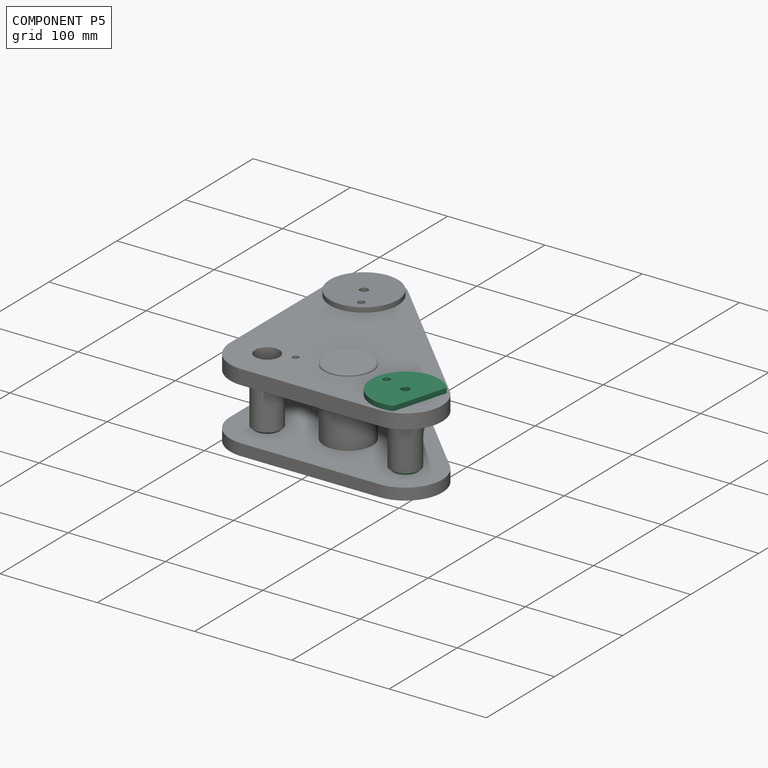
[diagram: component P5 — assembled]
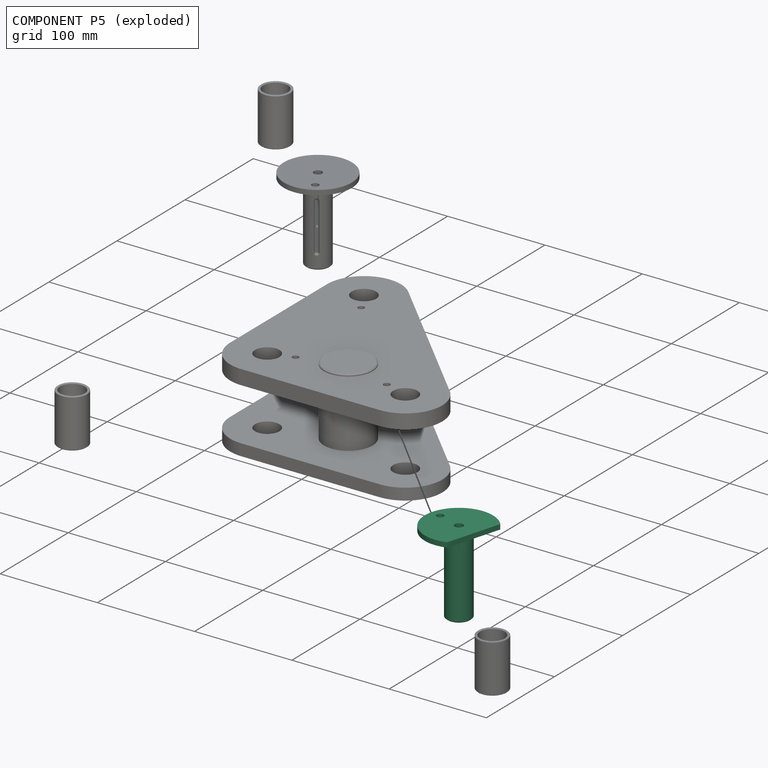
[diagram: component P5 — exploded]
COMPONENT P5 — recipe-attached ("axeCoupé", a linked part whose construction recipe lives in a companion FreeCAD document of the same project; that document's serialized recipe follows).
Held by: resting contact with P0 (derived edge); resting contact with P3 (derived edge).
Construction recipe (the companion document, serialized — sketch geometry with constraints, then the solid features built on it; lengths are millimeters unless a unit is written):

FCSTD DOCUMENT  (FreeCAD 0.20R29177 +426 (Git))
Label: hovairGuidageAxe
License: All rights reserved
LicenseURL: http://en.wikipedia.org/wiki/All_rights_reserved
objects: TechDraw::DrawViewDimension×17, Sketcher::SketchObject×7, TechDraw::DrawViewAnnotation×6, TechDraw::DrawLeaderLine×5, TechDraw::DrawViewBalloon×4, PartDesign::Pocket×3, TechDraw::DrawProjGroupItem×3, PartDesign::Pad×2, PartDesign::Plane×2, TechDraw::DrawSVGTemplate×2, PartDesign::Body×2, TechDraw::DrawViewSection×2, TechDraw::DrawProjGroup×2, TechDraw::DrawPage×2, PartDesign::Line×1, PartDesign::Groove×1, PartDesign::Hole×1, PartDesign::Chamfer×1, PartDesign::FeatureBase×1
note: 29 computed .brp shape members not serialized (recipe doc carries the construction recipe); baked Part::Feature solids carry a one-line shape summary decoded from their .brp

FEATURE [Sketcher::SketchObject] Sketch
  FullyConstrained = true
  MapMode = 5
  Support = -> [XY_Plane]
  sketch-geometry (1):
    g0: Circle CenterX=0 CenterY=0 CenterZ=0 NormalX=0 NormalY=0 NormalZ=1 AngleXU=0 Radius=35
  constraints (2):
    c: Coincident(g0,g-1)
    c: Diameter(g0) = 70
FEATURE [PartDesign::Pad] Pad  label="socle"
  Direction = (0,0,1)
  Length = 5
  Length2 = 10
  Profile = -> Sketch
  ReferenceAxis = -> Sketch [N_Axis]
  Type = 0
FEATURE [Sketcher::SketchObject] Sketch001
  FullyConstrained = true
  MapMode = 5
  Placement = pos=(0,0,5) rot=(0,0,1;0rad)
  Support = -> [Pad]
  sketch-geometry (1):
    g0: Circle CenterX=0 CenterY=0 CenterZ=0 NormalX=0 NormalY=0 NormalZ=1 AngleXU=0 Radius=12.5
  constraints (2):
    c: Coincident(g0,g-1)
    c: Diameter(g0) = 25
FEATURE [PartDesign::Pad] Pad001  label="arbre"
  BaseFeature = -> Pad
  Direction = (0,0,1)
  Length = 80
  Length2 = 10
  Profile = -> Sketch001
  ReferenceAxis = -> Sketch001 [N_Axis]
  Type = 0
FEATURE [PartDesign::Plane] DatumPlane
  Length = 87.3478
  MapMode = 3
  Placement = pos=(0,0,0) rot=(1,0,0;1.5708rad)
  ResizeMode = 0
  Support = -> [Pad001]
  Width = 127.527
FEATURE [Sketcher::SketchObject] Sketch002
  FullyConstrained = true
  MapMode = 5
  Placement = pos=(0,0,0) rot=(1,0,0;1.5708rad)
  Support = -> [DatumPlane]
  sketch-geometry (4):
    g0: LineSegment StartX=10.5 StartY=69 StartZ=0 EndX=10.5 EndY=21 EndZ=0
    g1: ArcOfCircle CenterX=13 CenterY=69 CenterZ=0 NormalX=0 NormalY=0 NormalZ=1 AngleXU=0 Radius=2.5 StartAngle=1.5708 EndAngle=3.1416
    g2: ArcOfCircle CenterX=13 CenterY=21 CenterZ=0 NormalX=0 NormalY=0 NormalZ=1 AngleXU=0 Radius=2.5 StartAngle=3.1416 EndAngle=4.71239
    g3: LineSegment StartX=13 StartY=71.5 StartZ=0 EndX=13 EndY=18.5 EndZ=0
  constraints (14):
    c: Vertical(g0)
    c: DistanceY(g0,g0) = 48
    c: Diameter(g1) = 5
    c: Coincident(g1,g0)
    c: Coincident(g2,g0)
    c: Diameter(g2) = 5
    c: Parallel(g0,g3)
    c: DistanceY(g3,g3) = 53
    c: Coincident(g1,g3)
    c: PointOnObject(g1,g3)
    c: Coincident(g2,g3)
    c: DistanceX(g0,g1) = 2.5
    c: DistanceY(g-1,g2) = 21
    c: DistanceX(g-1,g2) = 13
FEATURE [PartDesign::Line] DatumLine
  AttacherType = Attacher::AttachEngineLine
  Length = 20
  MapMode = 29
  Placement = pos=(13,0,0) rot=(0,1,0;3.14159rad)
  ResizeMode = 0
  Support = -> [Sketch002]
FEATURE [PartDesign::Groove] Groove  label="rainure"
  Angle = 360
  Axis = (0,-2e-16,-1)
  Base = (13,0,0)
  BaseFeature = -> Pad001
  Profile = -> Sketch002
  ReferenceAxis = -> DatumLine
FEATURE [PartDesign::Plane] DatumPlane001
  Length = 87.4488
  MapMode = 4
  Placement = pos=(0,0,0) rot=(0.57735,0.57735,0.57735;2.0944rad)
  ResizeMode = 0
  Support = -> [Pad001]
  Width = 127.539
FEATURE [Sketcher::SketchObject] Sketch003
  FullyConstrained = true
  MapMode = 5
  Placement = pos=(0,0,0) rot=(0.57735,0.57735,0.57735;2.0944rad)
  Support = -> [DatumPlane001]
  sketch-geometry (1):
    g0: Circle CenterX=0 CenterY=45 CenterZ=0 NormalX=0 NormalY=0 NormalZ=1 AngleXU=0 Radius=1.25
  constraints (3):
    c: DistanceY(g-1,g0) = 45
    c: DistanceX(g-1,g0) = 0
    c: Diameter(g0) = 2.5
FEATURE [PartDesign::Pocket] Pocket  label="canal"
  BaseFeature = -> Groove
  Direction = (-1,0,0)
  Length = 5
  Length2 = 5
  Profile = -> Sketch003
  ReferenceAxis = -> Sketch003 [N_Axis]
  Reversed = true
  Type = 1
FEATURE [Sketcher::SketchObject] Sketch004
  FullyConstrained = true
  MapMode = 5
  Placement = pos=(0,0,0) rot=(1,0,0;3.14159rad)
  Support = -> [Pocket]
  sketch-geometry (1):
    g0: Circle CenterX=25 CenterY=0 CenterZ=0 NormalX=0 NormalY=0 NormalZ=1 AngleXU=0 Radius=3.6
  constraints (3):
    c: PointOnObject(g0,g-1)
    c: DistanceX(g-1,g0) = 25
    c: Diameter(g0) = 7.2
FEATURE [PartDesign::Pocket] Pocket001  label="trouDeFixation"
  BaseFeature = -> Pocket
  Direction = (0,0,1)
  Length = 5
  Length2 = 5
  Profile = -> Sketch004
  ReferenceAxis = -> Sketch004 [N_Axis]
  Type = 1
FEATURE [Sketcher::SketchObject] Sketch005
  FullyConstrained = false
  MapMode = 5
  Placement = pos=(0,0,0) rot=(1,0,0;3.14159rad)
  Support = -> [Pocket001]
  sketch-geometry (1):
    g0: Circle CenterX=0 CenterY=0 CenterZ=0 NormalX=0 NormalY=0 NormalZ=1 AngleXU=0 Radius=12.5084
  constraints (1):
    c: Coincident(g0,g-1)
FEATURE [PartDesign::Hole] Hole
  BaseFeature = -> Pocket001
  CustomThreadClearance = 0
  Depth = 55
  DepthType = 0
  Diameter = 8.5
  DrillForDepth = false
  DrillPoint = 1
  DrillPointAngle = 118
  HoleCutCountersinkAngle = 90
  HoleCutCustomValues = false
  HoleCutDepth = 0
  HoleCutDiameter = 11.1
  HoleCutType = 0
  ModelThread = false
  Profile = -> Sketch005
  Tapered = false
  TaperedAngle = 90
  ThreadClass = 0
  ThreadDepth = 55
  ThreadDepthType = 0
  ThreadDirection = 0
  ThreadFit = 0
  ThreadSize = 18
  ThreadType = 1
  Threaded = true
  UseCustomThreadClearance = false
FEATURE [TechDraw::DrawSVGTemplate] Template
  EditableTexts = Designed_by_Name=Designed by Name; Drawing_number=Drawing number; FC-Date=Date; FC-SC=Scale; FC-SH=Sheet; FC-Title=Title; Subtitle=Subtitle; Weight=Weight
  Height = 210
  Orientation = 1
  Width = 297
FEATURE [PartDesign::Chamfer] Chamfer
  Angle = 45
  Base = -> Hole [Edge17]
  BaseFeature = -> Hole
  ChamferType = 0
  FlipDirection = false
  Size = 1
  Size2 = 1
  SupportTransform = false
  UseAllEdges = false
FEATURE [PartDesign::Body] Body  label="axe"
  Group = -> [Sketch,Pad,Sketch001,Pad001,DatumPlane,Sketch002,DatumLine,Groove,DatumPlane001,Sketch003,Pocket,Sketch004,Pocket001,Sketch005,Hole,Chamfer]
  Origin = -> Origin
  Tip = -> Chamfer
FEATURE [TechDraw::DrawProjGroupItem] ProjItem  label="Front"
  CoarseView = false
  Direction = (0,0,1)
  Focus = 100
  HardHidden = true
  IsoCount = 0
  IsoHidden = false
  IsoVisible = true
  LockPosition = true
  Perspective = false
  Rotation = 0
  RotationVector = (0,-1,0)
  ScaleType = 2
  SeamHidden = false
  SeamVisible = true
  SmoothHidden = false
  SmoothVisible = true
  Source = -> [Chamfer]
  Type = 0
  X = 0
  XDirection = (0,-1,0)
  Y = 0
FEATURE [TechDraw::DrawViewSection] SectionView
  BaseView = -> ProjItem
  CoarseView = false
  CutSurfaceDisplay = 2
  Direction = (0,-1,0)
  FileGeomPattern = <userpath>/AppData/Local/Programs/FreeCAD 0.20/data/Mod/TechDraw/PAT/FCPAT.pat
  FileHatchPattern = <userpath>/AppData/Local/Programs/FreeCAD 0.20/data/Mod/TechDraw/Patterns/simple.svg
  Focus = 100
  FuseBeforeCut = false
  HardHidden = false
  HatchScale = 1
  IsoCount = 0
  IsoHidden = false
  IsoVisible = true
  LockPosition = true
  NameGeomPattern = Diamant
  Perspective = false
  Rotation = 0
  ScaleType = 2
  SeamHidden = false
  SeamVisible = true
  SectionDirection = 1
  SectionNormal = (0,-1,0)
  SectionOrigin = (0.025,0,42.51)
  SectionSymbol = A
  SmoothHidden = false
  SmoothVisible = true
  Source = -> [Chamfer]
  X = 145.231
  XDirection = (0,0,-1)
  Y = 125.088
FEATURE [TechDraw::DrawViewSection] SectionView001
  BaseView = -> SectionView
  CoarseView = false
  CutSurfaceDisplay = 2
  Direction = (0,0,-1)
  FileGeomPattern = <userpath>/AppData/Local/Programs/FreeCAD 0.20/data/Mod/TechDraw/PAT/FCPAT.pat
  FileHatchPattern = <userpath>/AppData/Local/Programs/FreeCAD 0.20/data/Mod/TechDraw/Patterns/simple.svg
  Focus = 100
  FuseBeforeCut = false
  HardHidden = false
  HatchScale = 1
  IsoCount = 0
  IsoHidden = false
  IsoVisible = true
  LockPosition = true
  NameGeomPattern = Diamant
  Perspective = false
  Rotation = 0
  ScaleType = 2
  SeamHidden = false
  SeamVisible = true
  SectionDirection = 1
  SectionNormal = (0,0,-1)
  SectionOrigin = (0,17.5,45)
  SectionSymbol = B
  SmoothHidden = false
  SmoothVisible = true
  Source = -> [Chamfer]
  X = 45.6336
  XDirection = (0,1,0)
  Y = 125.088
FEATURE [PartDesign::FeatureBase] Clone
  BaseFeature = -> Body
FEATURE [Sketcher::SketchObject] Sketch006
  FullyConstrained = false
  MapMode = 5
  Placement = pos=(0,0,5) rot=(0,0,1;0rad)
  Support = -> [Clone]
  sketch-geometry (4):
    g0: LineSegment StartX=-45.8649 StartY=37.2212 StartZ=0 EndX=-20 EndY=37.2212 EndZ=0
    g1: LineSegment StartX=-20 StartY=37.2212 StartZ=0 EndX=-20 EndY=-43.7351 EndZ=0
    g2: LineSegment StartX=-20 StartY=-43.7351 StartZ=0 EndX=-45.8649 EndY=-43.7351 EndZ=0
    g3: LineSegment StartX=-45.8649 StartY=-43.7351 StartZ=0 EndX=-45.8649 EndY=37.2212 EndZ=0
  constraints (9):
    c: Coincident(g0,g1)
    c: Coincident(g1,g2)
    c: Coincident(g2,g3)
    c: Coincident(g3,g0)
    c: Horizontal(g0)
    c: Horizontal(g2)
    c: Vertical(g1)
    c: Vertical(g3)
    c: DistanceX(g0,g-1) = 20
FEATURE [PartDesign::Pocket] Pocket002
  BaseFeature = -> Clone
  Direction = (0,0,-1)
  Length = 5
  Length2 = 5
  Profile = -> Sketch006
  ReferenceAxis = -> Sketch006 [N_Axis]
  Type = 1
FEATURE [PartDesign::Body] Body001  label="axeCoupé"
  BaseFeature = -> Body
  Group = -> [Clone,Sketch006,Pocket002]
  Origin = -> Origin001
  Tip = -> Pocket002
FEATURE [TechDraw::DrawLeaderLine] LeaderLine
  AutoHorizontal = false
  EndSymbol = 7
  LeaderParent = -> SectionView
  LockPosition = true
  Rotation = 0
  Scalable = false
  ScaleType = 0
  StartSymbol = 0
  WayPoints = (2) [(0,0,0),(107.71,0,0)]
  X = -2.58379
  Y = 30.059
FEATURE [TechDraw::DrawLeaderLine] LeaderLine001
  AutoHorizontal = true
  EndSymbol = 7
  LeaderParent = -> SectionView
  LockPosition = true
  Rotation = 0
  Scalable = false
  ScaleType = 0
  StartSymbol = 0
  WayPoints = (2) [(0,0,0),(105.993,0,0)]
  X = -2.56286
  Y = -30.0156
FEATURE [TechDraw::DrawLeaderLine] LeaderLine002
  AutoHorizontal = true
  EndSymbol = 7
  LeaderParent = -> SectionView
  LockPosition = true
  Rotation = 0
  Scalable = false
  ScaleType = 0
  StartSymbol = 7
  WayPoints = (2) [(0,0,0),(0,0,0)]
  X = -2.53021
  Y = 29.868
FEATURE [TechDraw::DrawLeaderLine] LeaderLine003
  AutoHorizontal = false
  EndSymbol = 7
  LeaderParent = -> SectionView
  LockPosition = true
  Rotation = 0
  Scalable = false
  ScaleType = 0
  StartSymbol = 7
  WayPoints = (2) [(0,0,0),(-0.132979,602.237,0)]
  X = -2.47667
  Y = 30.1033
FEATURE [TechDraw::DrawViewAnnotation] Annotation
  Font = osifont
  LineSpace = 80
  LockPosition = false
  MaxWidth = -1
  Rotation = 0
  ScaleType = 0
  Text = B
  TextSize = 5
  TextStyle = 0
  X = 150.253
  Y = 100.234
FEATURE [TechDraw::DrawViewAnnotation] Annotation001
  Font = osifont
  LineSpace = 80
  LockPosition = false
  MaxWidth = -1
  Rotation = 0
  ScaleType = 0
  Text = B
  TextSize = 5
  TextStyle = 0
  X = 128.731
  Y = 154.896
FEATURE [TechDraw::DrawViewDimension] Dimension
  AngleOverride = false
  Arbitrary = false
  ArbitraryTolerances = false
  EqualTolerance = true
  ExtensionAngle = 0
  FormatSpec = %.2w
  FormatSpecOverTolerance = %+.2w
  FormatSpecUnderTolerance = %+.2w
  Inverted = false
  LineAngle = 0
  LockPosition = false
  MeasureType = 1
  OverTolerance = 0
  References2D = -> [ProjItem]
  Rotation = 0
  ScaleType = 0
  TheoreticalExact = false
  Type = 2
  UnderTolerance = 0
  X = 36.9797
  Y = 14.9752
FEATURE [TechDraw::DrawViewDimension] Dimension001
  AngleOverride = false
  Arbitrary = false
  ArbitraryTolerances = false
  EqualTolerance = true
  ExtensionAngle = 0
  FormatSpec = ⌀%.2w
  FormatSpecOverTolerance = %+.2w
  FormatSpecUnderTolerance = %+.2w
  Inverted = false
  LineAngle = 0
  LockPosition = false
  MeasureType = 1
  OverTolerance = 0
  References2D = -> [ProjItem]
  Rotation = 0
  ScaleType = 0
  TheoreticalExact = false
  Type = 5
  UnderTolerance = 0
  X = -13.1595
  Y = 50.4723
FEATURE [TechDraw::DrawLeaderLine] LeaderLine004
  AutoHorizontal = false
  EndSymbol = 7
  LeaderParent = -> SectionView
  LockPosition = true
  Rotation = 0
  Scalable = false
  ScaleType = 0
  StartSymbol = 7
  WayPoints = (4) [(0,0,0),(-301.398,0.387401,0),(-302.948,100.337,0),(0,100.337,0)]
  X = 42.5614
  Y = 5.06396
FEATURE [TechDraw::DrawViewDimension] Dimension003
  AngleOverride = false
  Arbitrary = true
  ArbitraryTolerances = false
  EqualTolerance = true
  ExtensionAngle = 0
  FormatSpec = M10
  FormatSpecOverTolerance = %+.2w
  FormatSpecUnderTolerance = %+.2w
  Inverted = false
  LineAngle = 0
  LockPosition = false
  MeasureType = 1
  OverTolerance = 0
  References2D = -> [SectionView]
  Rotation = 0
  ScaleType = 0
  TheoreticalExact = false
  Type = 2
  UnderTolerance = 0
  X = 49.2963
  Y = -10.293
FEATURE [TechDraw::DrawViewDimension] Dimension002
  AngleOverride = false
  Arbitrary = false
  ArbitraryTolerances = false
  EqualTolerance = true
  ExtensionAngle = 0
  FormatSpec = %.2w
  FormatSpecOverTolerance = %+.2w
  FormatSpecUnderTolerance = %+.2w
  Inverted = false
  LineAngle = 0
  LockPosition = false
  MeasureType = 1
  OverTolerance = 0
  References2D = -> [SectionView]
  Rotation = 0
  ScaleType = 0
  TheoreticalExact = false
  Type = 2
  UnderTolerance = 0
  X = 56.2924
  Y = 1.90033
FEATURE [TechDraw::DrawViewDimension] Dimension004
  AngleOverride = false
  Arbitrary = false
  ArbitraryTolerances = false
  EqualTolerance = false
  ExtensionAngle = 0
  FormatSpec = %.2w
  FormatSpecOverTolerance = %+.2w
  FormatSpecUnderTolerance = %+.2w
  Inverted = false
  LineAngle = 0
  LockPosition = false
  MeasureType = 1
  OverTolerance = 0
  References2D = -> [SectionView]
  Rotation = 0
  ScaleType = 0
  TheoreticalExact = false
  Type = 2
  UnderTolerance = -0.05
  X = -63.0676
  Y = 1.74324
FEATURE [TechDraw::DrawViewDimension] Dimension005
  AngleOverride = false
  Arbitrary = false
  ArbitraryTolerances = false
  EqualTolerance = true
  ExtensionAngle = 0
  FormatSpec = %.2w x45°
  FormatSpecOverTolerance = %+.2w
  FormatSpecUnderTolerance = %+.2w
  Inverted = false
  LineAngle = 0
  LockPosition = false
  MeasureType = 1
  OverTolerance = 0
  References2D = -> [SectionView]
  Rotation = 0
  ScaleType = 0
  TheoreticalExact = false
  Type = 1
  UnderTolerance = 0
  X = -52.2898
  Y = 41.53
FEATURE [TechDraw::DrawViewBalloon] Balloon
  BubbleShape = 7
  EndType = 7
  EndTypeScale = 1
  KinkLength = 5
  LockPosition = false
  OriginX = 37.1194
  OriginY = -22.8833
  Rotation = 0
  ScaleType = 0
  ShapeScale = 1
  SourceView = -> SectionView
  Text = 3,2
  TextWrapLen = -1
  X = 25.6235
  Y = -15.4237
FEATURE [TechDraw::DrawViewBalloon] Balloon001
  BubbleShape = 6
  EndType = 0
  EndTypeScale = 1
  KinkLength = 5
  LockPosition = false
  OriginX = -47.6881
  OriginY = 0.0800074
  Rotation = 0
  ScaleType = 0
  ShapeScale = 1
  SourceView = -> SectionView
  Text = ⟂|0,05|A
  TextWrapLen = -1
  X = -26.7526
  Y = -32.9986
FEATURE [TechDraw::DrawViewBalloon] Balloon003
  BubbleShape = 6
  EndType = 6
  EndTypeScale = 1
  KinkLength = 5
  LockPosition = false
  OriginX = 37.6725
  OriginY = -33.4487
  Rotation = 0
  ScaleType = 0
  ShapeScale = 1
  SourceView = -> SectionView
  Text = A
  TextWrapLen = -1
  X = 16.6079
  Y = -33.1243
FEATURE [TechDraw::DrawViewDimension] Dimension006
  AngleOverride = false
  Arbitrary = false
  ArbitraryTolerances = false
  EqualTolerance = true
  ExtensionAngle = 0
  FormatSpec = %.2w
  FormatSpecOverTolerance = %+.2w
  FormatSpecUnderTolerance = %+.2w
  Inverted = false
  LineAngle = 0
  LockPosition = false
  MeasureType = 1
  OverTolerance = 0
  References2D = -> [SectionView]
  Rotation = 0
  ScaleType = 0
  TheoreticalExact = false
  Type = 1
  UnderTolerance = 0
  X = -14.2297
  Y = 44.3108
FEATURE [TechDraw::DrawViewDimension] Dimension007
  AngleOverride = false
  Arbitrary = false
  ArbitraryTolerances = false
  EqualTolerance = true
  ExtensionAngle = 0
  FormatSpec = %.2w
  FormatSpecOverTolerance = %+.2w
  FormatSpecUnderTolerance = %+.2w
  Inverted = false
  LineAngle = 0
  LockPosition = false
  MeasureType = 1
  OverTolerance = 0
  References2D = -> [SectionView]
  Rotation = 0
  ScaleType = 0
  TheoreticalExact = false
  Type = 1
  UnderTolerance = 0
  X = 28.2703
  Y = 44.3108
FEATURE [TechDraw::DrawViewDimension] Dimension008
  AngleOverride = false
  Arbitrary = false
  ArbitraryTolerances = false
  EqualTolerance = true
  ExtensionAngle = 0
  FormatSpec = %.2w
  FormatSpecOverTolerance = %+.2w
  FormatSpecUnderTolerance = %+.2w
  Inverted = false
  LineAngle = 0
  LockPosition = false
  MeasureType = 1
  OverTolerance = 0
  References2D = -> [SectionView]
  Rotation = 0
  ScaleType = 0
  TheoreticalExact = false
  Type = 1
  UnderTolerance = 0
  X = 30.4672
  Y = 52.2793
FEATURE [TechDraw::DrawViewDimension] Dimension009
  AngleOverride = false
  Arbitrary = false
  ArbitraryTolerances = false
  EqualTolerance = true
  ExtensionAngle = 0
  FormatSpec = %.2w
  FormatSpecOverTolerance = %+.2w
  FormatSpecUnderTolerance = %+.2w
  Inverted = false
  LineAngle = 0
  LockPosition = false
  MeasureType = 1
  OverTolerance = 0
  References2D = -> [SectionView]
  Rotation = 0
  ScaleType = 0
  TheoreticalExact = false
  Type = 1
  UnderTolerance = 0
  X = -4.03278
  Y = 52.2793
FEATURE [TechDraw::DrawViewDimension] Dimension010
  AngleOverride = false
  Arbitrary = false
  ArbitraryTolerances = false
  EqualTolerance = true
  ExtensionAngle = 0
  FormatSpec = %.2w
  FormatSpecOverTolerance = %+.2w
  FormatSpecUnderTolerance = %+.2w
  Inverted = false
  LineAngle = 0
  LockPosition = false
  MeasureType = 1
  OverTolerance = 0
  References2D = -> [SectionView]
  Rotation = 0
  ScaleType = 0
  TheoreticalExact = false
  Type = 1
  UnderTolerance = 0
  X = -0.315315
  Y = 60.4347
FEATURE [TechDraw::DrawViewDimension] Dimension011
  AngleOverride = false
  Arbitrary = false
  ArbitraryTolerances = false
  EqualTolerance = true
  ExtensionAngle = 0
  FormatSpec = %.2w
  FormatSpecOverTolerance = %+.2w
  FormatSpecUnderTolerance = %+.2w
  Inverted = false
  LineAngle = 0
  LockPosition = false
  MeasureType = 1
  OverTolerance = 0
  References2D = -> [SectionView]
  Rotation = 0
  ScaleType = 0
  TheoreticalExact = false
  Type = 1
  UnderTolerance = 0
  X = 26.9745
  Y = -38.2583
FEATURE [TechDraw::DrawViewDimension] Dimension012
  AngleOverride = false
  Arbitrary = false
  ArbitraryTolerances = false
  EqualTolerance = true
  ExtensionAngle = 0
  FormatSpec = %.2w
  FormatSpecOverTolerance = %+.2w
  FormatSpecUnderTolerance = %+.2w
  Inverted = false
  LineAngle = 0
  LockPosition = false
  MeasureType = 1
  OverTolerance = 0
  References2D = -> [SectionView]
  Rotation = 0
  ScaleType = 0
  TheoreticalExact = false
  Type = 1
  UnderTolerance = 0
  X = 18.4718
  Y = -46.6468
FEATURE [TechDraw::DrawViewDimension] Dimension013
  AngleOverride = false
  Arbitrary = false
  ArbitraryTolerances = false
  EqualTolerance = true
  ExtensionAngle = 0
  FormatSpec = %.2w
  FormatSpecOverTolerance = %+.2w
  FormatSpecUnderTolerance = %+.2w
  Inverted = false
  LineAngle = 0
  LockPosition = false
  MeasureType = 1
  OverTolerance = 0
  References2D = -> [SectionView]
  Rotation = 0
  ScaleType = 0
  TheoreticalExact = false
  Type = 1
  UnderTolerance = 0
  X = 15
  Y = -57.6346
FEATURE [TechDraw::DrawViewBalloon] Balloon004
  BubbleShape = 7
  EndType = 7
  EndTypeScale = 1
  KinkLength = 5
  LockPosition = false
  OriginX = -51.0195
  OriginY = 13.1064
  Rotation = 0
  ScaleType = 0
  ShapeScale = 1
  SourceView = -> SectionView
  Text = 3.2
  TextWrapLen = -1
  X = -63.8649
  Y = 23.9097
FEATURE [TechDraw::DrawViewDimension] Dimension014
  AngleOverride = false
  Arbitrary = false
  ArbitraryTolerances = false
  EqualTolerance = true
  ExtensionAngle = 0
  FormatSpec = %.2w
  FormatSpecOverTolerance = %+.2w
  FormatSpecUnderTolerance = %+.2w
  Inverted = false
  LineAngle = 0
  LockPosition = false
  MeasureType = 1
  OverTolerance = 0
  References2D = -> [SectionView001]
  Rotation = 0
  ScaleType = 0
  TheoreticalExact = false
  Type = 2
  UnderTolerance = 0
  X = 13.3978
  Y = 22.2477
FEATURE [TechDraw::DrawViewDimension] Dimension015
  AngleOverride = false
  Arbitrary = false
  ArbitraryTolerances = false
  EqualTolerance = true
  ExtensionAngle = 0
  FormatSpec = R%.2w
  FormatSpecOverTolerance = %+.2w
  FormatSpecUnderTolerance = %+.2w
  Inverted = false
  LineAngle = 0
  LockPosition = false
  MeasureType = 1
  OverTolerance = 0
  References2D = -> [SectionView001]
  Rotation = 0
  ScaleType = 0
  TheoreticalExact = false
  Type = 4
  UnderTolerance = 0
  X = -9.47911
  Y = 30.6866
FEATURE [TechDraw::DrawViewAnnotation] Annotation002
  Font = osifont
  LineSpace = 80
  LockPosition = false
  MaxWidth = -1
  Rotation = 0
  ScaleType = 0
  Text = A-A
  TextSize = 8
  TextStyle = 0
  X = 142.454
  Y = 196.062
FEATURE [TechDraw::DrawViewAnnotation] Annotation003
  Font = osifont
  LineSpace = 80
  LockPosition = false
  MaxWidth = -1
  Rotation = 0
  ScaleType = 0
  Text = B-B
  TextSize = 8
  TextStyle = 0
  X = 40.1815
  Y = 194.657
FEATURE [TechDraw::DrawProjGroupItem] ProjItem001  label="FrontTopRight"
  CoarseView = false
  Direction = (0.57735,-0.57735,0.57735)
  Focus = 100
  HardHidden = false
  IsoCount = 0
  IsoHidden = false
  IsoVisible = true
  LockPosition = true
  Perspective = false
  Rotation = 0
  RotationVector = (1,0,0)
  ScaleType = 2
  SeamHidden = false
  SeamVisible = true
  SmoothHidden = false
  SmoothVisible = true
  Source = -> [Chamfer]
  Type = 7
  X = -186.324
  XDirection = (0,-0.707107,-0.707107)
  Y = -66.9498
FEATURE [TechDraw::DrawProjGroup] ProjGroup
  Anchor = -> ProjItem
  AutoDistribute = true
  LockPosition = false
  ProjectionType = 0
  Rotation = 0
  ScaleType = 0
  Source = -> [Chamfer]
  Views = -> [ProjItem,ProjItem001]
  X = 244.022
  Y = 125.088
  spacingX = 15
  spacingY = 15
FEATURE [TechDraw::DrawViewAnnotation] Annotation004
  Font = osifont
  LineSpace = 80
  LockPosition = false
  MaxWidth = -1
  Rotation = 0
  ScaleType = 0
  Text = VUE ISO
  TextSize = 8
  TextStyle = 0
  X = 60.6275
  Y = 23.3449
FEATURE [TechDraw::DrawPage] Page  label="Axe"
  KeepUpdated = true
  NextBalloonIndex = 6
  ProjectionType = 0
  Template = -> Template
  Views = -> [ProjGroup,SectionView,SectionView001,LeaderLine,LeaderLine001,LeaderLine002,LeaderLine003,Annotation,Annotation001,Dimension,Dimension001,LeaderLine004,Dimension002,Dimension003,Dimension004,Dimension005,Balloon,Balloon001,Balloon003,Dimension006,Dimension007,Dimension008,Dimension009,Dimension010,Dimension011,Dimension012,Dimension013,Balloon004,Dimension014,Dimension015,Annotation002,+2 more]
FEATURE [TechDraw::DrawSVGTemplate] Template001
  EditableTexts = Designed_by_Name=Designed by Name; Drawing_number=Drawing number; FC-Date=Date; FC-SC=Scale; FC-SH=Sheet; FC-Title=Title; Subtitle=Subtitle; Weight=Weight
  Height = 210
  Orientation = 1
  Width = 297
FEATURE [TechDraw::DrawProjGroupItem] ProjItem002  label="Front001"
  CoarseView = false
  Direction = (0,0,1)
  Focus = 100
  HardHidden = false
  IsoCount = 0
  IsoHidden = false
  IsoVisible = true
  LockPosition = true
  Perspective = false
  Rotation = 0
  RotationVector = (-1,0,0)
  ScaleType = 2
  SeamHidden = false
  SeamVisible = true
  SmoothHidden = false
  SmoothVisible = true
  Source = -> [Pocket002]
  Type = 0
  X = 0
  XDirection = (-1e-16,-1,0)
  Y = 0
FEATURE [TechDraw::DrawProjGroup] ProjGroup001
  Anchor = -> ProjItem002
  AutoDistribute = true
  LockPosition = false
  ProjectionType = 0
  Rotation = 0
  ScaleType = 0
  Source = -> [Pocket002]
  Views = -> [ProjItem002]
  X = 134.173
  Y = 158.626
  spacingX = 15
  spacingY = 15
FEATURE [TechDraw::DrawViewDimension] Dimension016
  AngleOverride = false
  Arbitrary = false
  ArbitraryTolerances = false
  EqualTolerance = true
  ExtensionAngle = 0
  FormatSpec = %.2w
  FormatSpecOverTolerance = %+.2w
  FormatSpecUnderTolerance = %+.2w
  Inverted = false
  LineAngle = 0
  LockPosition = false
  MeasureType = 1
  OverTolerance = 0
  References2D = -> [ProjItem002]
  Rotation = 0
  ScaleType = 0
  TheoreticalExact = false
  Type = 2
  UnderTolerance = 0
  X = 63.0749
  Y = -15
FEATURE [TechDraw::DrawViewAnnotation] Annotation005
  Font = osifont
  LineSpace = 80
  LockPosition = false
  MaxWidth = -1
  Rotation = 0
  ScaleType = 0
  Text = L'axe coupé est entièrement identique à l'axe normal, | exepté la partie coupé (seul côte de ce dessin)
  TextSize = 8
  TextStyle = 0
  X = 144.816
  Y = 96.8129
FEATURE [TechDraw::DrawPage] Page001  label="AxeCoupé"
  KeepUpdated = true
  NextBalloonIndex = 1
  ProjectionType = 0
  Template = -> Template001
  Views = -> [ProjGroup001,Dimension016,Annotation005]
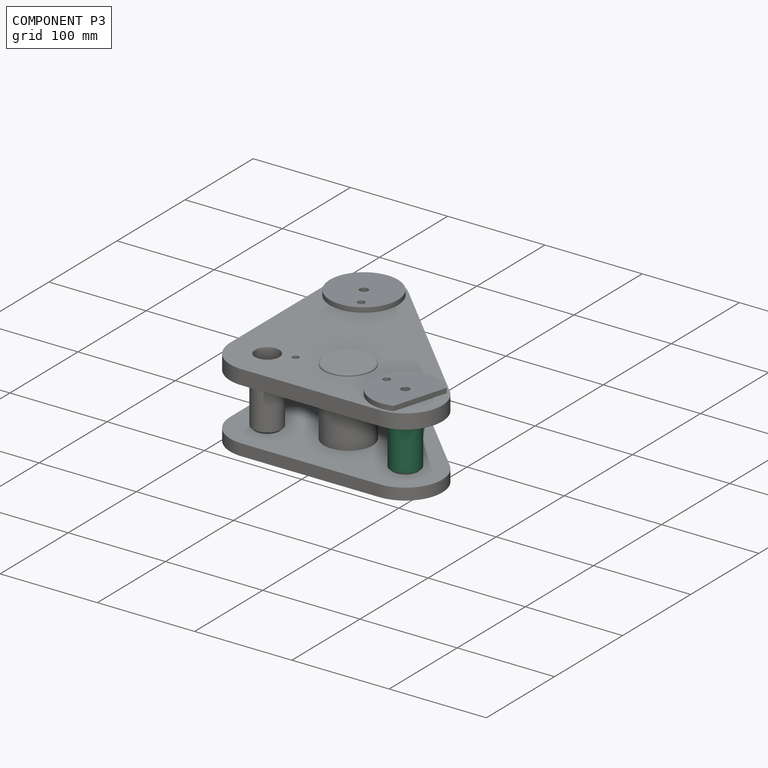
[diagram: component P3 — assembled]
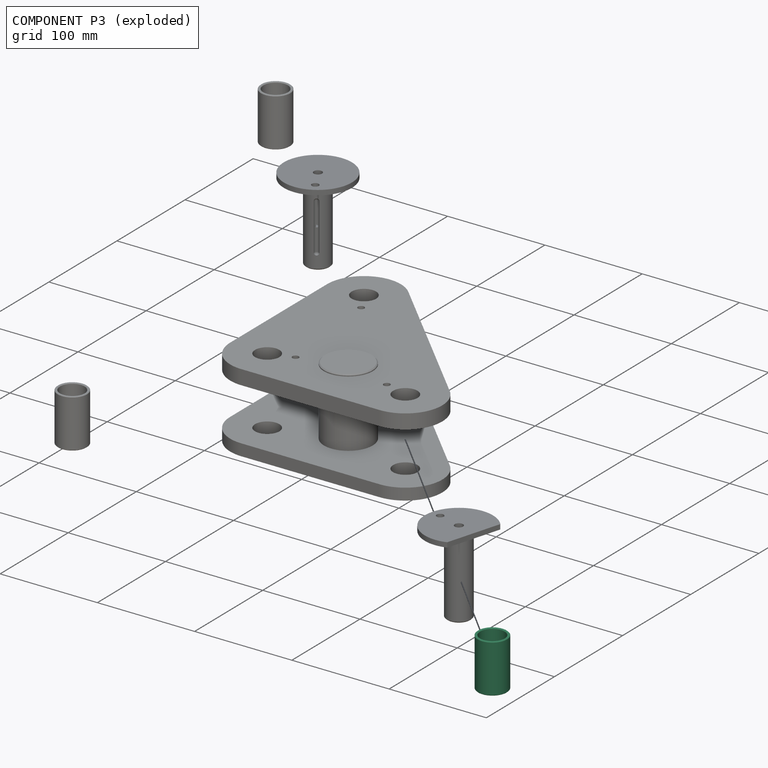
[diagram: component P3 — exploded]
COMPONENT P3 — same part as P2; its construction recipe is shown at P2.
Held by: resting contact with P0 (derived edge); resting contact with P5 (derived edge).
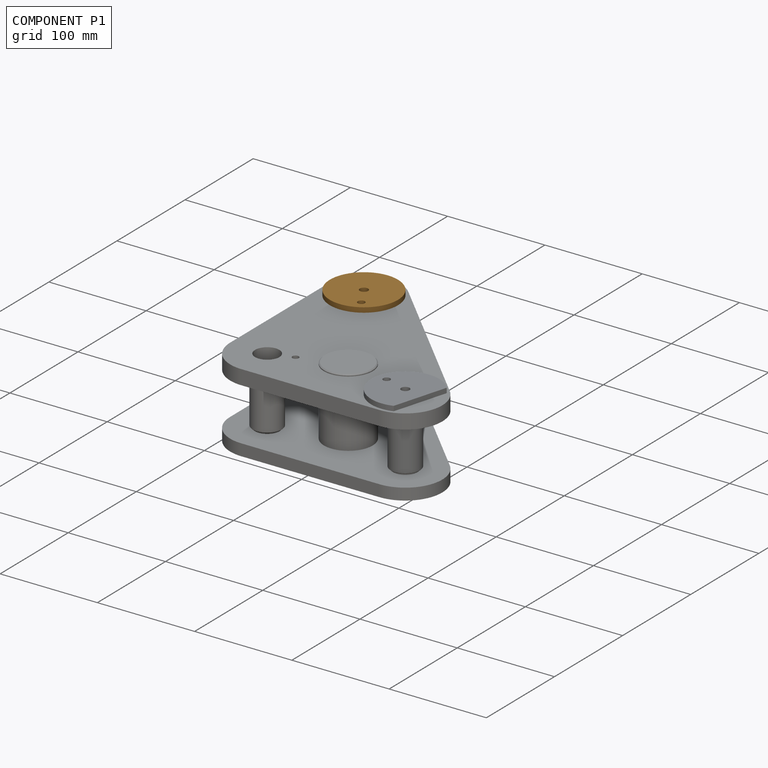
[diagram: component P1 — assembled]
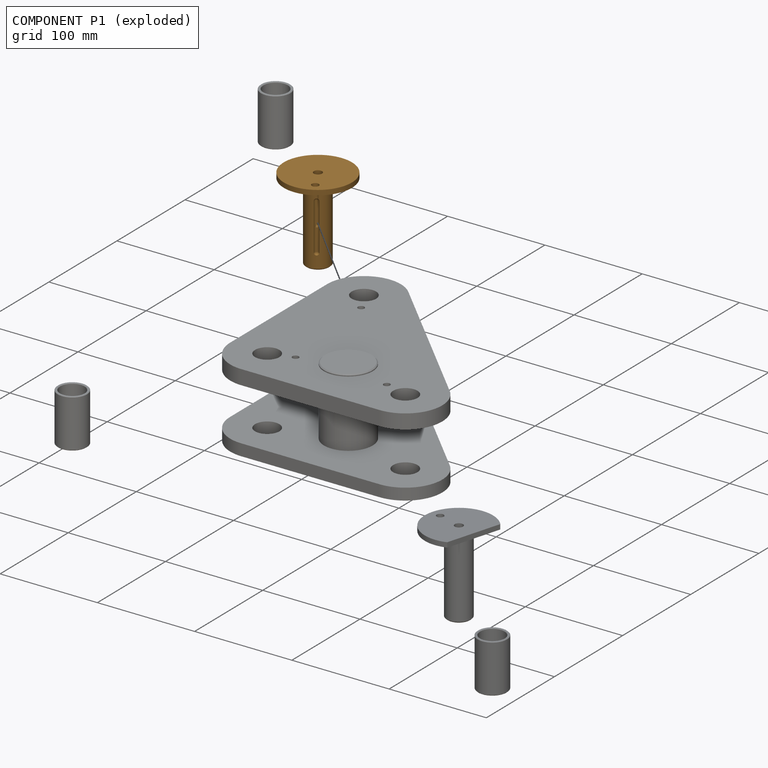
[diagram: component P1 — exploded]
COMPONENT P1 — geometry summary ("axeGalet"; no construction recipe available for this part):
  bounding box: 85.0 x 70.0 x 70.0 mm
  tessellated surface: 6,318 triangles
  volume: 54714 mm^3 (13% of its bounding box)
Held by: resting contact with P0 (derived edge); resting contact with P4 (derived edge).
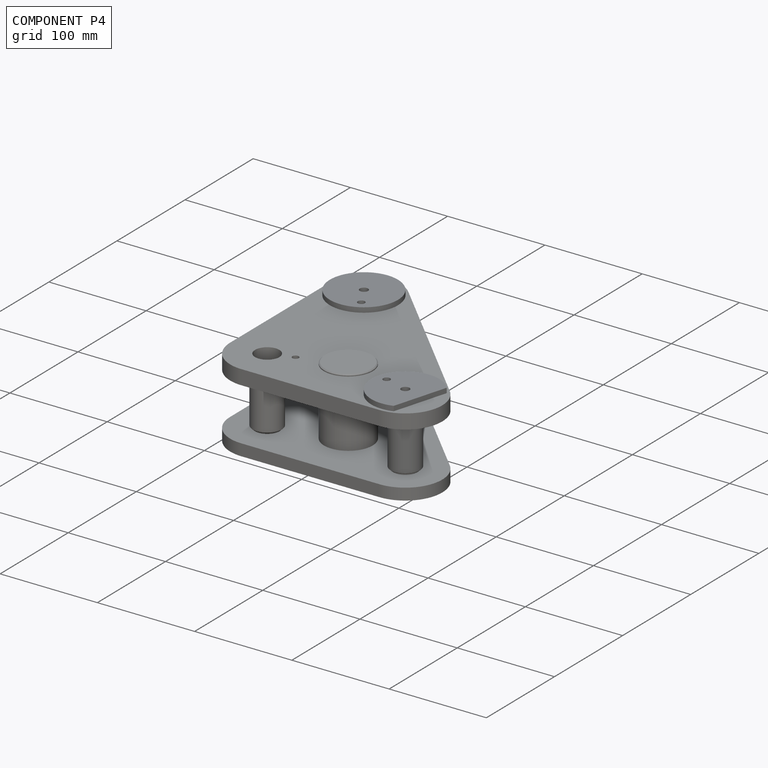
[diagram: component P4 — assembled]
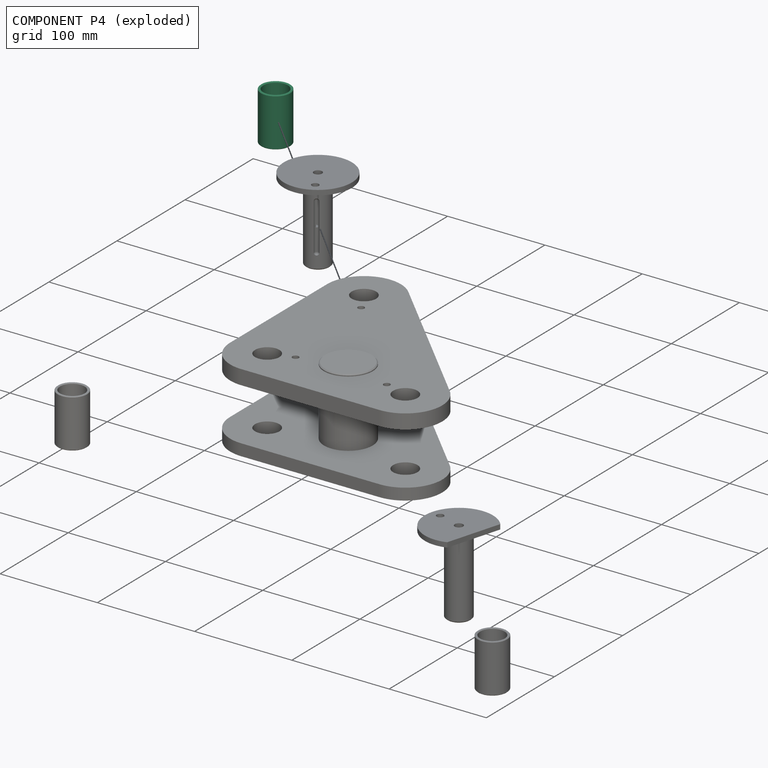
[diagram: component P4 — exploded]
COMPONENT P4 — same part as P2; its construction recipe is shown at P2.
Held by: resting contact with P0 (derived edge); resting contact with P1 (derived edge).
